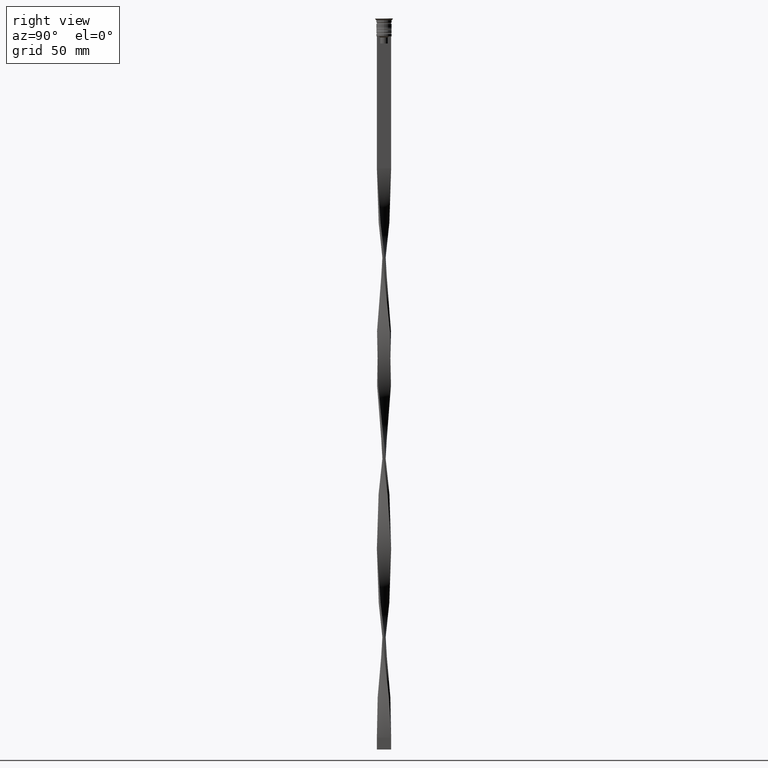
[diagram: clean part render]
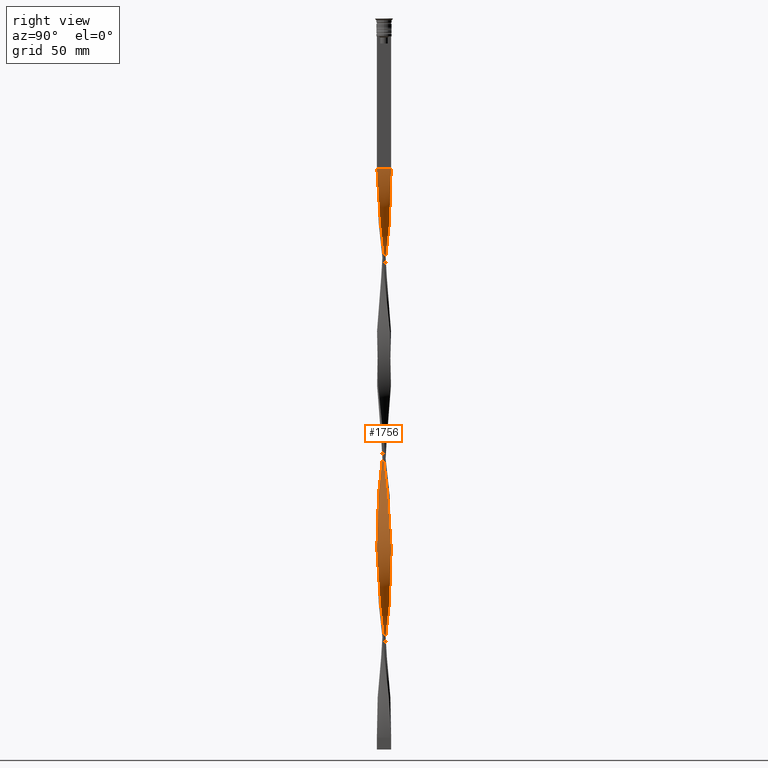
[diagram: same view with one face highlighted and labeled with its STEP entity id]
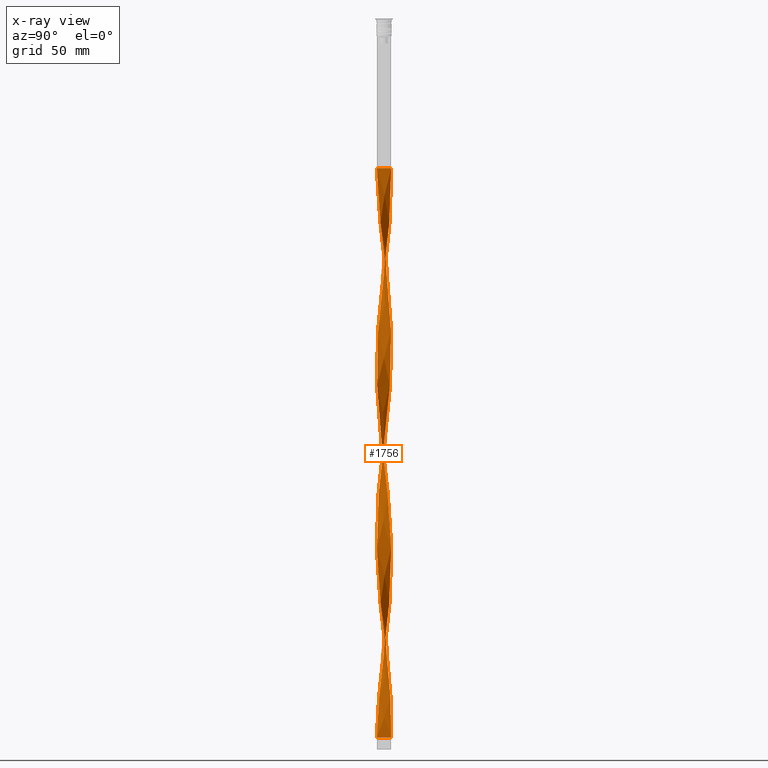
[diagram: x-ray of the same camera — body ghosted, the highlighted face saturated]
A machine part, right view. The second image highlights one B-rep face of the part: STEP entity #1756.
The next image is the same camera in x-ray: the body ghosted, the highlighted face saturated — about 0% of this face is hidden behind the body in this view.
In plain terms, the highlighted face is a freeform B-spline surface patch.
Its self-contained STEP definition (entity closure, byte-faithful):
#5 = CARTESIAN_POINT ( 'NONE',  ( 2.809046431942904931, 1.190190010362667472, -108.9041666666666828 ) ) ;
#7 = CARTESIAN_POINT ( 'NONE',  ( 0.9164682371244567971, 2.900014822434876738, -290.5249999999999204 ) ) ;
#23 = CARTESIAN_POINT ( 'NONE',  ( -1.807474761312824363, -2.446024322695329989, -290.5249999999999204 ) ) ;
#43 = CARTESIAN_POINT ( 'NONE',  ( 1.767766952966369320, 2.474873734152916338, -122.8749999999999858 ) ) ;
#47 = CARTESIAN_POINT ( 'NONE',  ( 0.9631475654182614088, -2.884847789265297724, -226.6583333333333030 ) ) ;
#64 = CARTESIAN_POINT ( 'NONE',  ( -0.9631475654182609647, 2.884847789265297724, -146.8249999999999886 ) ) ;
#67 = CARTESIAN_POINT ( 'NONE',  ( 2.884847789265297724, 0.9631475654182612978, -266.5749999999999318 ) ) ;
#73 = B_SPLINE_CURVE_WITH_KNOTS ( 'NONE', 3,
 ( #3613, #3072, #3670, #1000 ),
 .UNSPECIFIED., .F., .F.,
 ( 4, 4 ),
 ( 0.000000000000000000, 1.000000000000000000 ),
 .UNSPECIFIED. ) ;
#76 = CARTESIAN_POINT ( 'NONE',  ( 1.402579241272418953, -2.698661051697986757, -70.98333333333333428 ) ) ;
#83 = CARTESIAN_POINT ( 'NONE',  ( -1.807474761312823919, 2.446024322695330877, -154.8083333333333371 ) ) ;
#91 = CARTESIAN_POINT ( 'NONE',  ( -0.5000000000000002220, -3.000000000000000000, -302.5000000000000000 ) ) ;
#98 = CARTESIAN_POINT ( 'NONE',  ( -2.827887207922633372, 1.144704353466773128, -168.7791666666666401 ) ) ;
#114 = CARTESIAN_POINT ( 'NONE',  ( 2.167864254064892915, -2.133158356978606118, -78.96666666666665435 ) ) ;
#120 = CARTESIAN_POINT ( 'NONE',  ( 1.807474761312824141, -2.446024322695330433, -234.6416666666666515 ) ) ;
#135 = CARTESIAN_POINT ( 'NONE',  ( -3.007678046072934652, -0.4515227249772653106, -110.9000000000000057 ) ) ;
#153 = CARTESIAN_POINT ( 'NONE',  ( 2.720943609271079033, -1.358847259689946130, -246.6166666666666174 ) ) ;
#158 = CARTESIAN_POINT ( 'NONE',  ( -0.2148133291723922367, 3.043213655198747869, -228.6541666666666686 ) ) ;
#181 = CARTESIAN_POINT ( 'NONE',  ( -2.474873734152916782, -1.767766952966368654, -122.8749999999999858 ) ) ;
#189 = CARTESIAN_POINT ( 'NONE',  ( -0.2148133291723922644, 3.043213655198747869, -68.98749999999999716 ) ) ;
#193 = CARTESIAN_POINT ( 'NONE',  ( 0.9164682371244567971, 2.900014822434876738, -290.5249999999999204 ) ) ;
#197 = CARTESIAN_POINT ( 'NONE',  ( -1.614968472182171100, -2.588275671453069027, -132.8541666666666572 ) ) ;
#209 = CARTESIAN_POINT ( 'NONE',  ( -2.960649146587690961, 0.7361051204738554565, -100.9208333333333343 ) ) ;
#212 = CARTESIAN_POINT ( 'NONE',  ( 2.133158356978606118, 2.167864254064892471, -278.5499999999999545 ) ) ;
#216 = CARTESIAN_POINT ( 'NONE',  ( -0.2638948795261449320, -3.039350853412309039, -144.8291666666666515 ) ) ;
#219 = CARTESIAN_POINT ( 'NONE',  ( -2.167864254064892471, 2.133158356978606118, -158.7999999999999829 ) ) ;
#230 = CARTESIAN_POINT ( 'NONE',  ( 2.972142436947120991, 0.6882321207821398001, -192.7291666666666572 ) ) ;
#241 = CARTESIAN_POINT ( 'NONE',  ( 2.809046431942904931, -1.190190010362666806, -176.7624999999999886 ) ) ;
#244 = CARTESIAN_POINT ( 'NONE',  ( -2.588275671453068583, -1.614968472182171322, -192.7291666666666572 ) ) ;
#251 = CARTESIAN_POINT ( 'NONE',  ( -0.6882321207821390230, 2.972142436947121436, -232.6458333333333428 ) ) ;
#260 = CARTESIAN_POINT ( 'NONE',  ( -2.303772973937591395, 1.999981050443478514, -248.6124999999999829 ) ) ;
#262 = CARTESIAN_POINT ( 'NONE',  ( -3.000000000000000000, -0.4999999999999993339, -182.7499999999999716 ) ) ;
#268 = CARTESIAN_POINT ( 'NONE',  ( -1.144704353466774016, 2.827887207922633372, -236.6374999999999886 ) ) ;
#278 = CARTESIAN_POINT ( 'NONE',  ( 0.4999999999999998890, -3.000000000000000000, -63.00000000000000000 ) ) ;
#281 = CARTESIAN_POINT ( 'NONE',  ( -2.335747457686308426, 1.962543740019620842, -160.7958333333332916 ) ) ;
#287 = CARTESIAN_POINT ( 'NONE',  ( -0.9631475654182616308, -2.884847789265297280, -138.8416666666666401 ) ) ;
#299 = CARTESIAN_POINT ( 'NONE',  ( 1.614968472182170878, -2.588275671453069027, -72.97916666666665719 ) ) ;
#301 = CARTESIAN_POINT ( 'NONE',  ( 0.2148133291723926808, 3.043213655198747869, -136.8458333333333314 ) ) ;
#308 = CARTESIAN_POINT ( 'NONE',  ( 2.588275671453068139, -1.614968472182171988, -172.7708333333333144 ) ) ;
#317 = CARTESIAN_POINT ( 'NONE',  ( -1.572990165913118021, 2.614000010619525138, -240.6291666666666913 ) ) ;
#319 = CARTESIAN_POINT ( 'NONE',  ( 0.4515227249772658102, 3.007678046072934208, -294.5166666666666515 ) ) ;
#337 = CARTESIAN_POINT ( 'NONE',  ( -2.884847789265297724, -0.9631475654182608537, -186.7416666666666458 ) ) ;
#339 = CARTESIAN_POINT ( 'NONE',  ( 1.807474761312824141, -2.446024322695330433, -234.6416666666666515 ) ) ;
#346 = CARTESIAN_POINT ( 'NONE',  ( -2.972142436947120991, -0.6882321207821388009, -272.5624999999999432 ) ) ;
#356 = CARTESIAN_POINT ( 'NONE',  ( -1.358847259689946130, 2.720943609271079033, -78.96666666666665435 ) ) ;
#360 = CARTESIAN_POINT ( 'NONE',  ( -0.2148133291723915983, -3.043213655198747869, -216.6791666666666742 ) ) ;
#364 = CARTESIAN_POINT ( 'NONE',  ( 0.7361051204738552345, -2.960649146587690961, -224.6624999999999943 ) ) ;
#380 = CARTESIAN_POINT ( 'NONE',  ( -1.999981050443478070, 2.303772973937592283, -156.8041666666666458 ) ) ;
#382 = CARTESIAN_POINT ( 'NONE',  ( 2.972142436947121436, -0.6882321207821390230, -252.6041666666666288 ) ) ;
#395 = CARTESIAN_POINT ( 'NONE',  ( -1.402579241272418731, 2.698661051697987201, -150.8166666666666629 ) ) ;
#412 = CARTESIAN_POINT ( 'NONE',  ( 0.4999999999999998890, -3.000000000000000000, -222.6666666666666288 ) ) ;
#431 = CARTESIAN_POINT ( 'NONE',  ( -2.133158356978606118, 2.167864254064892915, -86.95000000000000284 ) ) ;
#434 = CARTESIAN_POINT ( 'NONE',  ( 2.446024322695330433, 1.807474761312824141, -274.5583333333332803 ) ) ;
#445 = CARTESIAN_POINT ( 'NONE',  ( -1.767766952966369098, 2.474873734152916782, -82.95833333333332860 ) ) ;
#447 = CARTESIAN_POINT ( 'NONE',  ( -1.614968472182171100, -2.588275671453069027, -132.8541666666666572 ) ) ;
#451 = CARTESIAN_POINT ( 'NONE',  ( 2.960649146587690517, 0.7361051204738550124, -264.5791666666666515 ) ) ;
#455 = CARTESIAN_POINT ( 'NONE',  ( 2.167864254064893803, 2.133158356978605674, -206.6999999999999602 ) ) ;
#467 = CARTESIAN_POINT ( 'NONE',  ( 3.039350853412309039, 0.2638948795261443769, -260.5874999999999773 ) ) ;
#471 = CARTESIAN_POINT ( 'NONE',  ( 3.041282254305528454, -0.02454077517687676749, -186.7416666666666458 ) ) ;
#488 = CARTESIAN_POINT ( 'NONE',  ( 0.6882321207821392450, 2.972142436947121436, -292.5208333333333712 ) ) ;
#493 = CARTESIAN_POINT ( 'NONE',  ( 1.999981050443478070, 2.303772973937592283, -208.6958333333333258 ) ) ;
#509 = CARTESIAN_POINT ( 'NONE',  ( 2.303772973937592283, -1.999981050443477626, -168.7791666666666401 ) ) ;
#512 = CARTESIAN_POINT ( 'NONE',  ( -0.02454077517687573706, 3.041282254305528010, -138.8416666666666401 ) ) ;
#519 = CARTESIAN_POINT ( 'NONE',  ( 1.614968472182172210, 2.588275671453068139, -212.6875000000000000 ) ) ;
#526 = CARTESIAN_POINT ( 'NONE',  ( 1.962543740019620175, -2.335747457686309758, -164.7874999999999659 ) ) ;
#529 = CARTESIAN_POINT ( 'NONE',  ( 2.972142436947121436, -0.6882321207821390230, -92.93750000000000000 ) ) ;
#539 = CARTESIAN_POINT ( 'NONE',  ( -0.2148133291723922644, 3.043213655198747869, -228.6541666666666686 ) ) ;
#550 = CARTESIAN_POINT ( 'NONE',  ( -1.144704353466773794, 2.827887207922633372, -236.6374999999999886 ) ) ;
#552 = CARTESIAN_POINT ( 'NONE',  ( -2.900014822434876738, 0.9164682371244570191, -170.7749999999999773 ) ) ;
#557 =( BOUNDED_SURFACE ( )  B_SPLINE_SURFACE ( 1, 2, ( 
 ( #3302, #627, #1822, #3617, #946, #646, #1843, #3033, #356, #2222, #445, #1031, #3124, #1633, #2827, #3413, #740, #1936, #1323, #2519, #3702, #2555, #3481, #3769, #1685, #1079, #1099, #1389, #2272, #807, #181, #2239, #1373, #2916, #3440, #197, #2860, #3201, #3736, #3790, #1945, #216, #1665, #2254, #2001, #2586, #2293, #3458, #2570, #3185, #2877, #526, #783, #509, #1701, #3147, #3133, #241, #3424, #3751, #3712, #749, #471, #1063, #2894, #1407, #2314, #2606, #1982, #3169, #1963, #765, #455, #493, #2019, #1121, #3498, #825, #1720, #1045, #2530, #1643, #2837, #158, #1353, #629, #3262, #550, #1762, #317, #2954, #2333, #3848, #260, #2662, #1137, #2703, #2643, #1433, #2078, #1806, #3304, #3245, #3599, #1745, #588, #1196, #3517, #3015, #2937, #1508, #2625, #2996, #904, #23, #1780, #2119, #842, #1214, #3576, #1824 ),
 ( #278, #3557, #2060, #3809, #2974, #299, #1178, #2411, #3827, #2037, #2096, #3225, #3282, #1451, #1156, #929, #1490, #611, #2352, #3539, #869, #2391, #2683, #5, #2374, #569, #1468, #886, #1294, #1870, #43, #3061, #720, #1258, #1887, #670, #1020, #1552, #1604, #3620, #1904, #3343, #64, #2493, #395, #1583, #83, #380, #3076, #3364, #2211, #2470, #2780, #98, #966, #948, #1924, #1241, #1567, #1527, #2436, #2155, #337, #2723, #2137, #3674, #3324, #985, #705, #3398, #2765, #2509, #649, #2179, #1004, #1845, #3035, #360, #3091, #2749, #412, #2196, #2799, #690, #2453, #3637, #120, #3380, #1274, #3653, #1312, #3692, #153, #1959, #1368, #3731, #819, #2268, #3454, #467, #2890, #451, #3493, #1385, #3112, #1095, #434, #1639, #212, #779, #2582, #3180, #1623, #3129, #193, #488, #1975, #1655, #1680, #3164, #2853 ) ),
 .UNSPECIFIED., .F., .F., .T. ) 
 B_SPLINE_SURFACE_WITH_KNOTS ( ( 2, 2 ),
 ( 3, 2, 2, 2, 2, 2, 2, 2, 2, 2, 2, 2, 2, 2, 2, 2, 2, 2, 2, 2, 2, 2, 2, 2, 2, 2, 2, 2, 2, 2, 2, 2, 2, 2, 2, 2, 2, 2, 2, 2, 2, 2, 2, 2, 2, 2, 2, 2, 2, 2, 2, 2, 2, 2, 2, 2, 2, 2, 2, 2, 3 ),
 ( 0.000000000000000000, 1.000000000000000000 ),
 ( 0.000000000000000000, 0.01250000000000000069, 0.02500000000000000139, 0.03749999999999999861, 0.05000000000000000278, 0.06250000000000000000, 0.07499999999999999722, 0.08749999999999999445, 0.1000000000000000056, 0.1125000000000000028, 0.1250000000000000000, 0.1375000000000000111, 0.1499999999999999944, 0.1625000000000000056, 0.1749999999999999889, 0.1875000000000000000, 0.2000000000000000111, 0.2124999999999999944, 0.2250000000000000056, 0.2374999999999999889, 0.2500000000000000000, 0.2625000000000000111, 0.2750000000000000222, 0.2874999999999999778, 0.2999999999999999889, 0.3125000000000000000, 0.3250000000000000111, 0.3375000000000000222, 0.3499999999999999778, 0.3624999999999999889, 0.3750000000000000000, 0.3875000000000000111, 0.4000000000000000222, 0.4124999999999999778, 0.4249999999999999889, 0.4375000000000000000, 0.4500000000000000111, 0.4625000000000000222, 0.4749999999999999778, 0.4874999999999999889, 0.5000000000000000000, 0.5124999999999999556, 0.5250000000000000222, 0.5374999999999999778, 0.5500000000000000444, 0.5625000000000000000, 0.5749999999999999556, 0.5875000000000000222, 0.5999999999999999778, 0.6125000000000000444, 0.6250000000000000000, 0.6374999999999999556, 0.6500000000000000222, 0.6624999999999999778, 0.6750000000000000444, 0.6875000000000000000, 0.6999999999999999556, 0.7125000000000000222, 0.7249999999999999778, 0.7375000000000000444, 0.7500000000000000000 ),
 .UNSPECIFIED. ) 
 GEOMETRIC_REPRESENTATION_ITEM ( )  RATIONAL_B_SPLINE_SURFACE ( (
 ( 1.000000000000000000, 0.9969173337331279638, 1.000000000000000000, 0.9969173337331279638, 1.000000000000000000, 0.9969173337331279638, 1.000000000000000000, 0.9969173337331279638, 1.000000000000000000, 0.9969173337331279638, 1.000000000000000000, 0.9969173337331279638, 1.000000000000000000, 0.9969173337331279638, 1.000000000000000000, 0.9969173337331279638, 1.000000000000000000, 0.9969173337331279638, 1.000000000000000000, 0.9969173337331279638, 1.000000000000000000, 0.9969173337331279638, 1.000000000000000000, 0.9969173337331279638, 1.000000000000000000, 0.9969173337331279638, 1.000000000000000000, 0.9969173337331279638, 1.000000000000000000, 0.9969173337331279638, 1.000000000000000000, 0.9969173337331279638, 1.000000000000000000, 0.9969173337331279638, 1.000000000000000000, 0.9969173337331279638, 1.000000000000000000, 0.9969173337331279638, 1.000000000000000000, 0.9969173337331279638, 1.000000000000000000, 0.9969173337331279638, 1.000000000000000000, 0.9969173337331279638, 1.000000000000000000, 0.9969173337331279638, 1.000000000000000000, 0.9969173337331279638, 1.000000000000000000, 0.9969173337331279638, 1.000000000000000000, 0.9969173337331279638, 1.000000000000000000, 0.9969173337331279638, 1.000000000000000000, 0.9969173337331279638, 1.000000000000000000, 0.9969173337331279638, 1.000000000000000000, 0.9969173337331279638, 1.000000000000000000, 0.9969173337331279638, 1.000000000000000000, 0.9969173337331279638, 1.000000000000000000, 0.9969173337331279638, 1.000000000000000000, 0.9969173337331279638, 1.000000000000000000, 0.9969173337331279638, 1.000000000000000000, 0.9969173337331279638, 1.000000000000000000, 0.9969173337331279638, 1.000000000000000000, 0.9969173337331279638, 1.000000000000000000, 0.9969173337331279638, 1.000000000000000000, 0.9969173337331279638, 1.000000000000000000, 0.9969173337331279638, 1.000000000000000000, 0.9969173337331279638, 1.000000000000000000, 0.9969173337331279638, 1.000000000000000000, 0.9969173337331279638, 1.000000000000000000, 0.9969173337331279638, 1.000000000000000000, 0.9969173337331279638, 1.000000000000000000, 0.9969173337331279638, 1.000000000000000000, 0.9969173337331279638, 1.000000000000000000, 0.9969173337331279638, 1.000000000000000000, 0.9969173337331279638, 1.000000000000000000, 0.9969173337331279638, 1.000000000000000000, 0.9969173337331279638, 1.000000000000000000, 0.9969173337331279638, 1.000000000000000000, 0.9969173337331279638, 1.000000000000000000, 0.9969173337331279638, 1.000000000000000000, 0.9969173337331279638, 1.000000000000000000, 0.9969173337331279638, 1.000000000000000000, 0.9969173337331279638, 1.000000000000000000, 0.9969173337331279638, 1.000000000000000000, 0.9969173337331279638, 1.000000000000000000),
 ( 1.000000000000000000, 0.9969173337331279638, 1.000000000000000000, 0.9969173337331279638, 1.000000000000000000, 0.9969173337331279638, 1.000000000000000000, 0.9969173337331279638, 1.000000000000000000, 0.9969173337331279638, 1.000000000000000000, 0.9969173337331279638, 1.000000000000000000, 0.9969173337331279638, 1.000000000000000000, 0.9969173337331279638, 1.000000000000000000, 0.9969173337331279638, 1.000000000000000000, 0.9969173337331279638, 1.000000000000000000, 0.9969173337331279638, 1.000000000000000000, 0.9969173337331279638, 1.000000000000000000, 0.9969173337331279638, 1.000000000000000000, 0.9969173337331279638, 1.000000000000000000, 0.9969173337331279638, 1.000000000000000000, 0.9969173337331279638, 1.000000000000000000, 0.9969173337331279638, 1.000000000000000000, 0.9969173337331279638, 1.000000000000000000, 0.9969173337331279638, 1.000000000000000000, 0.9969173337331279638, 1.000000000000000000, 0.9969173337331279638, 1.000000000000000000, 0.9969173337331279638, 1.000000000000000000, 0.9969173337331279638, 1.000000000000000000, 0.9969173337331279638, 1.000000000000000000, 0.9969173337331279638, 1.000000000000000000, 0.9969173337331279638, 1.000000000000000000, 0.9969173337331279638, 1.000000000000000000, 0.9969173337331279638, 1.000000000000000000, 0.9969173337331279638, 1.000000000000000000, 0.9969173337331279638, 1.000000000000000000, 0.9969173337331279638, 1.000000000000000000, 0.9969173337331279638, 1.000000000000000000, 0.9969173337331279638, 1.000000000000000000, 0.9969173337331279638, 1.000000000000000000, 0.9969173337331279638, 1.000000000000000000, 0.9969173337331279638, 1.000000000000000000, 0.9969173337331279638, 1.000000000000000000, 0.9969173337331279638, 1.000000000000000000, 0.9969173337331279638, 1.000000000000000000, 0.9969173337331279638, 1.000000000000000000, 0.9969173337331279638, 1.000000000000000000, 0.9969173337331279638, 1.000000000000000000, 0.9969173337331279638, 1.000000000000000000, 0.9969173337331279638, 1.000000000000000000, 0.9969173337331279638, 1.000000000000000000, 0.9969173337331279638, 1.000000000000000000, 0.9969173337331279638, 1.000000000000000000, 0.9969173337331279638, 1.000000000000000000, 0.9969173337331279638, 1.000000000000000000, 0.9969173337331279638, 1.000000000000000000, 0.9969173337331279638, 1.000000000000000000, 0.9969173337331279638, 1.000000000000000000, 0.9969173337331279638, 1.000000000000000000, 0.9969173337331279638, 1.000000000000000000, 0.9969173337331279638, 1.000000000000000000, 0.9969173337331279638, 1.000000000000000000, 0.9969173337331279638, 1.000000000000000000, 0.9969173337331279638, 1.000000000000000000, 0.9969173337331279638, 1.000000000000000000, 0.9969173337331279638, 1.000000000000000000) ) ) 
 REPRESENTATION_ITEM ( '' )  SURFACE ( )  );
#560 = CARTESIAN_POINT ( 'NONE',  ( -2.588275671453069027, 1.614968472182170878, -252.6041666666666288 ) ) ;
#569 = CARTESIAN_POINT ( 'NONE',  ( 2.588275671453069471, 1.614968472182170656, -112.8958333333333570 ) ) ;
#571 = CARTESIAN_POINT ( 'NONE',  ( -2.960649146587690961, -0.7361051204738561227, -184.7458333333333371 ) ) ;
#577 = CARTESIAN_POINT ( 'NONE',  ( 1.767766952966368654, -2.474873734152917226, -162.7916666666666572 ) ) ;
#588 = CARTESIAN_POINT ( 'NONE',  ( -2.972142436947120991, -0.6882321207821388009, -272.5624999999998863 ) ) ;
#590 = CARTESIAN_POINT ( 'NONE',  ( 2.900014822434876738, -0.9164682371244565751, -90.94166666666667709 ) ) ;
#596 = CARTESIAN_POINT ( 'NONE',  ( 3.007678046072934652, 0.4515227249772650331, -190.7333333333333201 ) ) ;
#611 = CARTESIAN_POINT ( 'NONE',  ( 3.043213655198747869, -0.2148133291723924587, -96.92916666666667425 ) ) ;
#627 = CARTESIAN_POINT ( 'NONE',  ( 0.2638948795261445435, 3.039350853412309039, -64.99583333333333712 ) ) ;
#629 = CARTESIAN_POINT ( 'NONE',  ( -0.6882321207821390230, 2.972142436947121436, -232.6458333333333428 ) ) ;
#631 = CARTESIAN_POINT ( 'NONE',  ( 3.007678046072934208, -0.4515227249772656992, -254.5999999999999375 ) ) ;
#632 = EDGE_CURVE ( 'NONE', #1620, #3483, #1236, .T. ) ;
#646 = CARTESIAN_POINT ( 'NONE',  ( -0.6882321207821390230, 2.972142436947121436, -72.97916666666665719 ) ) ;
#649 = CARTESIAN_POINT ( 'NONE',  ( -1.358847259689946574, -2.720943609271078589, -206.6999999999999602 ) ) ;
#651 = DIRECTION ( 'NONE',  ( 0.000000000000000000, 1.000000000000000000, 0.000000000000000000 ) ) ;
#658 = CARTESIAN_POINT ( 'NONE',  ( -3.041282254305528454, 0.02454077517687633381, -266.5749999999999318 ) ) ;
#670 = CARTESIAN_POINT ( 'NONE',  ( 0.6882321207821392450, 2.972142436947121436, -132.8541666666666572 ) ) ;
#690 = CARTESIAN_POINT ( 'NONE',  ( 1.190190010362667694, -2.809046431942904931, -228.6541666666666686 ) ) ;
#692 = CARTESIAN_POINT ( 'NONE',  ( 2.446024322695330433, 1.807474761312824141, -274.5583333333332803 ) ) ;
#699 = CARTESIAN_POINT ( 'NONE',  ( 1.190190010362667472, -2.809046431942904931, -68.98749999999999716 ) ) ;
#705 = CARTESIAN_POINT ( 'NONE',  ( -2.133158356978606562, -2.167864254064892027, -198.7166666666666401 ) ) ;
#720 = CARTESIAN_POINT ( 'NONE',  ( 1.358847259689946352, 2.720943609271078589, -126.8666666666666600 ) ) ;
#727 = EDGE_CURVE ( 'NONE', #1620, #3533, #950, .T. ) ;
#740 = CARTESIAN_POINT ( 'NONE',  ( -2.698661051697986757, 1.402579241272419175, -94.93333333333332291 ) ) ;
#749 = CARTESIAN_POINT ( 'NONE',  ( 3.039350853412309039, -0.2638948795261437108, -184.7458333333333371 ) ) ;
#765 = CARTESIAN_POINT ( 'NONE',  ( 2.335747457686309758, 1.962543740019619731, -204.7041666666666799 ) ) ;
#776 = CARTESIAN_POINT ( 'NONE',  ( -3.000000000000000000, 0.5000000000000001110, -102.9166666666666572 ) ) ;
#779 = CARTESIAN_POINT ( 'NONE',  ( 1.962543740019620175, 2.335747457686308426, -280.5458333333333485 ) ) ;
#783 = CARTESIAN_POINT ( 'NONE',  ( 2.133158356978605674, -2.167864254064893359, -166.7833333333333030 ) ) ;
#798 = CARTESIAN_POINT ( 'NONE',  ( -1.807474761312824363, -2.446024322695329989, -130.8583333333333201 ) ) ;
#807 = CARTESIAN_POINT ( 'NONE',  ( -2.614000010619525138, -1.572990165913117577, -120.8791666666666629 ) ) ;
#810 = CARTESIAN_POINT ( 'NONE',  ( -2.827887207922633372, 1.144704353466773350, -168.7791666666666401 ) ) ;
#816 = CARTESIAN_POINT ( 'NONE',  ( 2.446024322695329989, -1.807474761312824807, -170.7749999999999773 ) ) ;
#819 = CARTESIAN_POINT ( 'NONE',  ( 3.007678046072934208, -0.4515227249772656992, -254.5999999999999375 ) ) ;
#822 = CARTESIAN_POINT ( 'NONE',  ( -0.4999999999999995559, 3.000000000000000000, -302.5000000000000000 ) ) ;
#825 = CARTESIAN_POINT ( 'NONE',  ( 1.190190010362667028, 2.809046431942904931, -216.6791666666666742 ) ) ;
#828 = CARTESIAN_POINT ( 'NONE',  ( -2.972142436947120547, 0.6882321207821407993, -172.7708333333333144 ) ) ;
#833 =( BOUNDED_CURVE ( )  B_SPLINE_CURVE ( 2, ( #2539, #2868, #1993, #189, #3107, #2886, #3125, #3177, #3158, #1676, #3141, #2207, #431, #1364, #3744, #3451, #1382, #3725, #3432, #209, #776, #1399, #1635, #3687, #135, #1971, #2579, #2812, #1015, #3703, #3761, #1032, #1091, #3469, #798, #447, #3270, #2011, #287, #878, #1794, #3253, #3549, #2634, #3508, #2987, #3800, #2963, #1480, #3490, #577, #2383, #3237, #2366, #816, #308, #2904, #2675, #2597, #3858, #2069, #1771, #1188, #3566, #596, #230, #894, #1113, #2086, #3780, #3818, #835, #2304, #1130, #3194, #519, #1712, #1424, #2616, #1737, #2323, #2030, #3212, #539, #2928, #251, #1442, #268, #1147, #2342, #3527, #858, #2052, #3835, #1753, #560, #1168, #1459, #2945, #2653, #3026, #939, #658, #2187, #1517, #346, #1560, #3585, #2128, #3667, #3356, #996, #913, #2774, #2147, #1536, #3314, #1205, #3049, #2693, #2481 ),
 .UNSPECIFIED., .F., .F. ) 
 B_SPLINE_CURVE_WITH_KNOTS ( ( 3, 2, 2, 2, 2, 2, 2, 2, 2, 2, 2, 2, 2, 2, 2, 2, 2, 2, 2, 2, 2, 2, 2, 2, 2, 2, 2, 2, 2, 2, 2, 2, 2, 2, 2, 2, 2, 2, 2, 2, 2, 2, 2, 2, 2, 2, 2, 2, 2, 2, 2, 2, 2, 2, 2, 2, 2, 2, 2, 2, 3 ),
 ( 0.000000000000000000, 0.01250000000000000243, 0.02500000000000000486, 0.03749999999999999861, 0.05000000000000000971, 0.06250000000000000000, 0.07499999999999999722, 0.08749999999999998057, 0.1000000000000000194, 0.1125000000000000028, 0.1250000000000000000, 0.1375000000000000111, 0.1499999999999999944, 0.1625000000000000056, 0.1749999999999999611, 0.1875000000000000000, 0.2000000000000000389, 0.2124999999999999944, 0.2250000000000000056, 0.2374999999999999611, 0.2500000000000000000, 0.2625000000000000111, 0.2750000000000000222, 0.2874999999999999778, 0.2999999999999999889, 0.3125000000000000000, 0.3250000000000000111, 0.3375000000000000777, 0.3499999999999999223, 0.3624999999999999889, 0.3750000000000000000, 0.3875000000000000111, 0.4000000000000000777, 0.4124999999999999223, 0.4249999999999999889, 0.4375000000000000000, 0.4500000000000000111, 0.4625000000000000777, 0.4749999999999999223, 0.4874999999999999889, 0.5000000000000000000, 0.5124999999999999556, 0.5250000000000000222, 0.5374999999999999778, 0.5500000000000000444, 0.5625000000000000000, 0.5749999999999999556, 0.5875000000000000222, 0.5999999999999999778, 0.6125000000000000444, 0.6250000000000000000, 0.6374999999999999556, 0.6500000000000000222, 0.6624999999999999778, 0.6750000000000001554, 0.6875000000000000000, 0.6999999999999998446, 0.7125000000000000222, 0.7249999999999999778, 0.7375000000000001554, 0.7500000000000000000 ),
 .UNSPECIFIED. ) 
 CURVE ( )  GEOMETRIC_REPRESENTATION_ITEM ( )  RATIONAL_B_SPLINE_CURVE ( ( 1.000000000000000000, 0.9969173337331279638, 1.000000000000000000, 0.9969173337331279638, 1.000000000000000000, 0.9969173337331279638, 1.000000000000000000, 0.9969173337331279638, 1.000000000000000000, 0.9969173337331279638, 1.000000000000000000, 0.9969173337331279638, 1.000000000000000000, 0.9969173337331279638, 1.000000000000000000, 0.9969173337331279638, 1.000000000000000000, 0.9969173337331279638, 1.000000000000000000, 0.9969173337331279638, 1.000000000000000000, 0.9969173337331279638, 1.000000000000000000, 0.9969173337331279638, 1.000000000000000000, 0.9969173337331279638, 1.000000000000000000, 0.9969173337331279638, 1.000000000000000000, 0.9969173337331279638, 1.000000000000000000, 0.9969173337331279638, 1.000000000000000000, 0.9969173337331279638, 1.000000000000000000, 0.9969173337331279638, 1.000000000000000000, 0.9969173337331279638, 1.000000000000000000, 0.9969173337331279638, 1.000000000000000000, 0.9969173337331279638, 1.000000000000000000, 0.9969173337331279638, 1.000000000000000000, 0.9969173337331279638, 1.000000000000000000, 0.9969173337331279638, 1.000000000000000000, 0.9969173337331279638, 1.000000000000000000, 0.9969173337331279638, 1.000000000000000000, 0.9969173337331279638, 1.000000000000000000, 0.9969173337331279638, 1.000000000000000000, 0.9969173337331279638, 1.000000000000000000, 0.9969173337331279638, 1.000000000000000000, 0.9969173337331279638, 1.000000000000000000, 0.9969173337331279638, 1.000000000000000000, 0.9969173337331279638, 1.000000000000000000, 0.9969173337331279638, 1.000000000000000000, 0.9969173337331279638, 1.000000000000000000, 0.9969173337331279638, 1.000000000000000000, 0.9969173337331279638, 1.000000000000000000, 0.9969173337331279638, 1.000000000000000000, 0.9969173337331279638, 1.000000000000000000, 0.9969173337331279638, 1.000000000000000000, 0.9969173337331279638, 1.000000000000000000, 0.9969173337331279638, 1.000000000000000000, 0.9969173337331279638, 1.000000000000000000, 0.9969173337331279638, 1.000000000000000000, 0.9969173337331279638, 1.000000000000000000, 0.9969173337331279638, 1.000000000000000000, 0.9969173337331279638, 1.000000000000000000, 0.9969173337331279638, 1.000000000000000000, 0.9969173337331279638, 1.000000000000000000, 0.9969173337331279638, 1.000000000000000000, 0.9969173337331279638, 1.000000000000000000, 0.9969173337331279638, 1.000000000000000000, 0.9969173337331279638, 1.000000000000000000, 0.9969173337331279638, 1.000000000000000000, 0.9969173337331279638, 1.000000000000000000, 0.9969173337331279638, 1.000000000000000000, 0.9969173337331279638, 1.000000000000000000, 0.9969173337331279638, 1.000000000000000000, 0.9969173337331279638, 1.000000000000000000, 0.9969173337331279638, 1.000000000000000000 ) ) 
 REPRESENTATION_ITEM ( '' )  );
#835 = CARTESIAN_POINT ( 'NONE',  ( 2.335747457686309758, 1.962543740019619509, -204.7041666666666515 ) ) ;
#842 = CARTESIAN_POINT ( 'NONE',  ( -1.190190010362667916, -2.809046431942904931, -296.5125000000000455 ) ) ;
#845 = CARTESIAN_POINT ( 'NONE',  ( 0.6882321207821392450, 2.972142436947121436, -132.8541666666666572 ) ) ;
#858 = CARTESIAN_POINT ( 'NONE',  ( -1.962543740019620397, 2.335747457686308870, -244.6208333333333087 ) ) ;
#869 = CARTESIAN_POINT ( 'NONE',  ( 3.000000000000000000, 0.4999999999999996669, -102.9166666666666572 ) ) ;
#871 = CARTESIAN_POINT ( 'NONE',  ( -2.474873734152916338, 1.767766952966369765, -162.7916666666666572 ) ) ;
#878 = CARTESIAN_POINT ( 'NONE',  ( -0.7361051204738556786, -2.960649146587690961, -140.8375000000000057 ) ) ;
#886 = CARTESIAN_POINT ( 'NONE',  ( 2.303772973937592283, 1.999981050443478514, -116.8875000000000028 ) ) ;
#888 = CARTESIAN_POINT ( 'NONE',  ( 3.007678046072934208, -0.4515227249772656992, -94.93333333333332291 ) ) ;
#894 = CARTESIAN_POINT ( 'NONE',  ( 2.900014822434877182, 0.9164682371244560199, -194.7249999999999943 ) ) ;
#904 = CARTESIAN_POINT ( 'NONE',  ( -1.999981050443478514, -2.303772973937591395, -288.5291666666666970 ) ) ;
#906 = CARTESIAN_POINT ( 'NONE',  ( 2.900014822434876738, -0.9164682371244565751, -250.6083333333333201 ) ) ;
#913 = CARTESIAN_POINT ( 'NONE',  ( -2.167864254064893359, -2.133158356978605674, -286.5333333333333030 ) ) ;
#929 = CARTESIAN_POINT ( 'NONE',  ( 2.972142436947121436, -0.6882321207821390230, -92.93750000000001421 ) ) ;
#939 = CARTESIAN_POINT ( 'NONE',  ( -3.039350853412309483, 0.2638948795261447100, -264.5791666666666515 ) ) ;
#946 = CARTESIAN_POINT ( 'NONE',  ( -0.4515227249772654772, 3.007678046072934208, -70.98333333333333428 ) ) ;
#948 = CARTESIAN_POINT ( 'NONE',  ( -2.972142436947120547, 0.6882321207821407993, -172.7708333333333144 ) ) ;
#950 = LINE ( 'NONE', #2139, #2910 ) ;
#966 = CARTESIAN_POINT ( 'NONE',  ( -2.900014822434876738, 0.9164682371244570191, -170.7749999999999773 ) ) ;
#985 = CARTESIAN_POINT ( 'NONE',  ( -2.303772973937592727, -1.999981050443477182, -196.7208333333333314 ) ) ;
#990 = CARTESIAN_POINT ( 'NONE',  ( 0.6882321207821392450, 2.972142436947121436, -292.5208333333333144 ) ) ;
#996 = CARTESIAN_POINT ( 'NONE',  ( -2.335747457686308870, -1.962543740019620397, -284.5375000000000796 ) ) ;
#1000 = CARTESIAN_POINT ( 'NONE',  ( -0.4999999999999995559, 3.000000000000000000, -302.5000000000000000 ) ) ;
#1004 = CARTESIAN_POINT ( 'NONE',  ( -0.9164682371244570191, -2.900014822434876738, -210.6916666666666345 ) ) ;
#1015 = CARTESIAN_POINT ( 'NONE',  ( -2.720943609271079033, -1.358847259689945686, -118.8833333333333258 ) ) ;
#1020 = CARTESIAN_POINT ( 'NONE',  ( 0.4515227249772658102, 3.007678046072934208, -134.8499999999999659 ) ) ;
#1031 = CARTESIAN_POINT ( 'NONE',  ( -1.962543740019620175, 2.335747457686308870, -84.95416666666666572 ) ) ;
#1032 = CARTESIAN_POINT ( 'NONE',  ( -2.335747457686308870, -1.962543740019620397, -124.8708333333333371 ) ) ;
#1045 = CARTESIAN_POINT ( 'NONE',  ( 0.7361051204738573439, 2.960649146587690073, -220.6708333333333485 ) ) ;
#1059 = EDGE_LOOP ( 'NONE', ( #2180, #2679, #1716, #3688 ) ) ;
#1063 = CARTESIAN_POINT ( 'NONE',  ( 3.043213655198747869, 0.2148133291723903493, -188.7374999999999545 ) ) ;
#1066 = CARTESIAN_POINT ( 'NONE',  ( 2.614000010619525138, -1.572990165913117799, -84.95416666666666572 ) ) ;
#1079 = CARTESIAN_POINT ( 'NONE',  ( -2.972142436947120991, -0.6882321207821388009, -112.8958333333333570 ) ) ;
#1091 = CARTESIAN_POINT ( 'NONE',  ( -2.167864254064893359, -2.133158356978605674, -126.8666666666666600 ) ) ;
#1095 = CARTESIAN_POINT ( 'NONE',  ( 2.588275671453069471, 1.614968472182170656, -272.5624999999998863 ) ) ;
#1099 = CARTESIAN_POINT ( 'NONE',  ( -2.900014822434877182, -0.9164682371244562420, -114.8916666666666515 ) ) ;
#1104 = CARTESIAN_POINT ( 'NONE',  ( -2.614000010619523806, 1.572990165913119354, -164.7874999999999659 ) ) ;
#1113 = CARTESIAN_POINT ( 'NONE',  ( 2.827887207922633817, 1.144704353466772684, -196.7208333333333030 ) ) ;
#1121 = CARTESIAN_POINT ( 'NONE',  ( 1.614968472182172432, 2.588275671453068139, -212.6875000000000284 ) ) ;
#1124 = CARTESIAN_POINT ( 'NONE',  ( -2.303772973937592283, -1.999981050443477182, -196.7208333333333030 ) ) ;
#1130 = CARTESIAN_POINT ( 'NONE',  ( 1.999981050443478070, 2.303772973937591839, -208.6958333333333258 ) ) ;
#1137 = CARTESIAN_POINT ( 'NONE',  ( -2.588275671453069027, 1.614968472182170878, -252.6041666666666003 ) ) ;
#1141 = CARTESIAN_POINT ( 'NONE',  ( -1.767766952966369765, -2.474873734152915894, -202.7083333333332860 ) ) ;
#1147 = CARTESIAN_POINT ( 'NONE',  ( -1.358847259689946130, 2.720943609271079033, -238.6333333333332973 ) ) ;
#1156 = CARTESIAN_POINT ( 'NONE',  ( 2.900014822434876738, -0.9164682371244565751, -90.94166666666667709 ) ) ;
#1158 = CARTESIAN_POINT ( 'NONE',  ( -0.4515227249772663654, -3.007678046072934208, -214.6833333333333087 ) ) ;
#1168 = CARTESIAN_POINT ( 'NONE',  ( -2.698661051697986757, 1.402579241272419175, -254.5999999999999375 ) ) ;
#1178 = CARTESIAN_POINT ( 'NONE',  ( 1.807474761312824141, -2.446024322695330433, -74.97499999999999432 ) ) ;
#1180 = CARTESIAN_POINT ( 'NONE',  ( 2.446024322695330433, 1.807474761312824141, -114.8916666666666515 ) ) ;
#1188 = CARTESIAN_POINT ( 'NONE',  ( 3.041282254305528454, -0.02454077517687676749, -186.7416666666666458 ) ) ;
#1196 = CARTESIAN_POINT ( 'NONE',  ( -2.900014822434877182, -0.9164682371244562420, -274.5583333333332803 ) ) ;
#1198 = CARTESIAN_POINT ( 'NONE',  ( 1.614968472182170878, -2.588275671453069027, -232.6458333333333428 ) ) ;
#1205 = CARTESIAN_POINT ( 'NONE',  ( -1.190190010362667916, -2.809046431942904931, -296.5124999999999886 ) ) ;
#1214 = CARTESIAN_POINT ( 'NONE',  ( -0.9631475654182616308, -2.884847789265297280, -298.5083333333332689 ) ) ;
#1216 = CARTESIAN_POINT ( 'NONE',  ( 3.043213655198747869, -0.2148133291723924865, -256.5958333333333030 ) ) ;
#1236 =( BOUNDED_CURVE ( )  B_SPLINE_CURVE ( 2, ( #2758, #3373, #1561, #699, #76, #1897, #3086, #1594, #114, #2502, #3684, #1066, #2258, #3443, #590, #529, #888, #2897, #3229, #2356, #3484, #2080, #2317, #1413, #2005, #2062, #1180, #1747, #3264, #3188, #1783, #2921, #2023, #2647, #3542, #845, #2978, #301, #512, #3850, #2589, #3502, #2611, #1704, #3247, #2376, #2939, #3772, #219, #281, #871, #1104, #2298, #810, #552, #828, #1436, #2041, #3204, #3793, #262, #571, #3559, #1725, #2957, #244, #1764, #1124, #1470, #2628, #1141, #3812, #1453, #2336, #3520, #3829, #1158, #2666, #2121, #2181, #3063, #364, #47, #2455, #3017, #1198, #339, #1889, #2413, #3037, #1826, #3366, #2705, #2767, #906, #382, #631, #1216, #3639, #1554, #2751, #2393, #67, #2685, #2472, #1570, #692, #3079, #1529, #1492, #3655, #3622, #1872, #2725, #7, #990, #319, #3327, #3579, #2098, #3287 ),
 .UNSPECIFIED., .F., .F. ) 
 B_SPLINE_CURVE_WITH_KNOTS ( ( 3, 2, 2, 2, 2, 2, 2, 2, 2, 2, 2, 2, 2, 2, 2, 2, 2, 2, 2, 2, 2, 2, 2, 2, 2, 2, 2, 2, 2, 2, 2, 2, 2, 2, 2, 2, 2, 2, 2, 2, 2, 2, 2, 2, 2, 2, 2, 2, 2, 2, 2, 2, 2, 2, 2, 2, 2, 2, 2, 2, 3 ),
 ( 0.000000000000000000, 0.01250000000000000243, 0.02500000000000000486, 0.03749999999999999861, 0.05000000000000000971, 0.06250000000000000000, 0.07499999999999999722, 0.08749999999999998057, 0.1000000000000000194, 0.1125000000000000028, 0.1250000000000000000, 0.1375000000000000111, 0.1499999999999999944, 0.1625000000000000056, 0.1749999999999999611, 0.1875000000000000000, 0.2000000000000000389, 0.2124999999999999944, 0.2250000000000000056, 0.2374999999999999611, 0.2500000000000000000, 0.2625000000000000111, 0.2750000000000000222, 0.2874999999999999778, 0.2999999999999999889, 0.3125000000000000000, 0.3250000000000000111, 0.3375000000000000777, 0.3499999999999999223, 0.3624999999999999889, 0.3750000000000000000, 0.3875000000000000111, 0.4000000000000000777, 0.4124999999999999223, 0.4249999999999999889, 0.4375000000000000000, 0.4500000000000000111, 0.4625000000000000777, 0.4749999999999999223, 0.4874999999999999889, 0.5000000000000000000, 0.5124999999999999556, 0.5250000000000000222, 0.5374999999999999778, 0.5500000000000000444, 0.5625000000000000000, 0.5749999999999999556, 0.5875000000000000222, 0.5999999999999999778, 0.6125000000000000444, 0.6250000000000000000, 0.6374999999999999556, 0.6500000000000000222, 0.6624999999999999778, 0.6750000000000001554, 0.6875000000000000000, 0.6999999999999998446, 0.7125000000000000222, 0.7249999999999999778, 0.7375000000000001554, 0.7500000000000000000 ),
 .UNSPECIFIED. ) 
 CURVE ( )  GEOMETRIC_REPRESENTATION_ITEM ( )  RATIONAL_B_SPLINE_CURVE ( ( 1.000000000000000000, 0.9969173337331279638, 1.000000000000000000, 0.9969173337331279638, 1.000000000000000000, 0.9969173337331279638, 1.000000000000000000, 0.9969173337331279638, 1.000000000000000000, 0.9969173337331279638, 1.000000000000000000, 0.9969173337331279638, 1.000000000000000000, 0.9969173337331279638, 1.000000000000000000, 0.9969173337331279638, 1.000000000000000000, 0.9969173337331279638, 1.000000000000000000, 0.9969173337331279638, 1.000000000000000000, 0.9969173337331279638, 1.000000000000000000, 0.9969173337331279638, 1.000000000000000000, 0.9969173337331279638, 1.000000000000000000, 0.9969173337331279638, 1.000000000000000000, 0.9969173337331279638, 1.000000000000000000, 0.9969173337331279638, 1.000000000000000000, 0.9969173337331279638, 1.000000000000000000, 0.9969173337331279638, 1.000000000000000000, 0.9969173337331279638, 1.000000000000000000, 0.9969173337331279638, 1.000000000000000000, 0.9969173337331279638, 1.000000000000000000, 0.9969173337331279638, 1.000000000000000000, 0.9969173337331279638, 1.000000000000000000, 0.9969173337331279638, 1.000000000000000000, 0.9969173337331279638, 1.000000000000000000, 0.9969173337331279638, 1.000000000000000000, 0.9969173337331279638, 1.000000000000000000, 0.9969173337331279638, 1.000000000000000000, 0.9969173337331279638, 1.000000000000000000, 0.9969173337331279638, 1.000000000000000000, 0.9969173337331279638, 1.000000000000000000, 0.9969173337331279638, 1.000000000000000000, 0.9969173337331279638, 1.000000000000000000, 0.9969173337331279638, 1.000000000000000000, 0.9969173337331279638, 1.000000000000000000, 0.9969173337331279638, 1.000000000000000000, 0.9969173337331279638, 1.000000000000000000, 0.9969173337331279638, 1.000000000000000000, 0.9969173337331279638, 1.000000000000000000, 0.9969173337331279638, 1.000000000000000000, 0.9969173337331279638, 1.000000000000000000, 0.9969173337331279638, 1.000000000000000000, 0.9969173337331279638, 1.000000000000000000, 0.9969173337331279638, 1.000000000000000000, 0.9969173337331279638, 1.000000000000000000, 0.9969173337331279638, 1.000000000000000000, 0.9969173337331279638, 1.000000000000000000, 0.9969173337331279638, 1.000000000000000000, 0.9969173337331279638, 1.000000000000000000, 0.9969173337331279638, 1.000000000000000000, 0.9969173337331279638, 1.000000000000000000, 0.9969173337331279638, 1.000000000000000000, 0.9969173337331279638, 1.000000000000000000, 0.9969173337331279638, 1.000000000000000000, 0.9969173337331279638, 1.000000000000000000, 0.9969173337331279638, 1.000000000000000000, 0.9969173337331279638, 1.000000000000000000, 0.9969173337331279638, 1.000000000000000000, 0.9969173337331279638, 1.000000000000000000, 0.9969173337331279638, 1.000000000000000000 ) ) 
 REPRESENTATION_ITEM ( '' )  );
#1241 = CARTESIAN_POINT ( 'NONE',  ( -3.043213655198747869, 0.2148133291723914873, -176.7624999999999886 ) ) ;
#1258 = CARTESIAN_POINT ( 'NONE',  ( 1.144704353466774238, 2.827887207922633372, -128.8624999999999829 ) ) ;
#1274 = CARTESIAN_POINT ( 'NONE',  ( 2.167864254064892915, -2.133158356978606118, -238.6333333333332973 ) ) ;
#1294 = CARTESIAN_POINT ( 'NONE',  ( 2.133158356978606118, 2.167864254064892471, -118.8833333333333258 ) ) ;
#1312 = CARTESIAN_POINT ( 'NONE',  ( 2.474873734152916782, -1.767766952966369098, -242.6249999999999716 ) ) ;
#1323 = CARTESIAN_POINT ( 'NONE',  ( -2.884847789265297724, 0.9631475654182616308, -98.92499999999998295 ) ) ;
#1353 = CARTESIAN_POINT ( 'NONE',  ( -0.4515227249772654772, 3.007678046072934208, -230.6499999999999773 ) ) ;
#1364 = CARTESIAN_POINT ( 'NONE',  ( -2.303772973937590951, 1.999981050443478514, -88.94583333333332575 ) ) ;
#1368 = CARTESIAN_POINT ( 'NONE',  ( 2.900014822434876738, -0.9164682371244565751, -250.6083333333333201 ) ) ;
#1373 = CARTESIAN_POINT ( 'NONE',  ( -2.167864254064893359, -2.133158356978605674, -126.8666666666666600 ) ) ;
#1382 = CARTESIAN_POINT ( 'NONE',  ( -2.698661051697986757, 1.402579241272419175, -94.93333333333332291 ) ) ;
#1385 = CARTESIAN_POINT ( 'NONE',  ( 2.809046431942904931, 1.190190010362667472, -268.5708333333332689 ) ) ;
#1389 = CARTESIAN_POINT ( 'NONE',  ( -2.827887207922633372, -1.144704353466773794, -116.8875000000000028 ) ) ;
#1393 = CARTESIAN_POINT ( 'NONE',  ( 0.4999999999999998890, -3.000000000000000000, -63.00000000000000000 ) ) ;
#1399 = CARTESIAN_POINT ( 'NONE',  ( -3.039350853412309483, 0.2638948795261447100, -104.9125000000000085 ) ) ;
#1407 = CARTESIAN_POINT ( 'NONE',  ( 2.972142436947120991, 0.6882321207821398001, -192.7291666666666288 ) ) ;
#1413 = CARTESIAN_POINT ( 'NONE',  ( 2.809046431942904931, 1.190190010362667472, -108.9041666666666828 ) ) ;
#1424 = CARTESIAN_POINT ( 'NONE',  ( 1.190190010362667028, 2.809046431942904931, -216.6791666666666742 ) ) ;
#1433 = CARTESIAN_POINT ( 'NONE',  ( -2.884847789265297724, 0.9631475654182616308, -258.5916666666666401 ) ) ;
#1436 = CARTESIAN_POINT ( 'NONE',  ( -3.007678046072934208, 0.4515227249772660323, -174.7666666666666515 ) ) ;
#1442 = CARTESIAN_POINT ( 'NONE',  ( -0.9164682371244562420, 2.900014822434877182, -234.6416666666666515 ) ) ;
#1451 = CARTESIAN_POINT ( 'NONE',  ( 2.827887207922633372, -1.144704353466774238, -88.94583333333332575 ) ) ;
#1453 = CARTESIAN_POINT ( 'NONE',  ( -1.358847259689946574, -2.720943609271078589, -206.6999999999999602 ) ) ;
#1459 = CARTESIAN_POINT ( 'NONE',  ( -2.809046431942904931, 1.190190010362667472, -256.5958333333333030 ) ) ;
#1468 = CARTESIAN_POINT ( 'NONE',  ( 2.446024322695330433, 1.807474761312824141, -114.8916666666666515 ) ) ;
#1470 = CARTESIAN_POINT ( 'NONE',  ( -2.133158356978606562, -2.167864254064892027, -198.7166666666666401 ) ) ;
#1480 = CARTESIAN_POINT ( 'NONE',  ( 1.358847259689945686, -2.720943609271079033, -158.7999999999999829 ) ) ;
#1490 = CARTESIAN_POINT ( 'NONE',  ( 3.007678046072934208, -0.4515227249772656992, -94.93333333333332291 ) ) ;
#1492 = CARTESIAN_POINT ( 'NONE',  ( 1.962543740019620397, 2.335747457686308426, -280.5458333333333485 ) ) ;
#1508 = CARTESIAN_POINT ( 'NONE',  ( -2.474873734152916782, -1.767766952966368654, -282.5416666666666288 ) ) ;
#1517 = CARTESIAN_POINT ( 'NONE',  ( -3.007678046072934652, -0.4515227249772653106, -270.5666666666666060 ) ) ;
#1527 = CARTESIAN_POINT ( 'NONE',  ( -3.039350853412309483, -0.2638948795261427116, -180.7541666666666345 ) ) ;
#1529 = CARTESIAN_POINT ( 'NONE',  ( 2.133158356978606118, 2.167864254064892471, -278.5499999999999545 ) ) ;
#1536 = CARTESIAN_POINT ( 'NONE',  ( -1.614968472182171100, -2.588275671453069027, -292.5208333333333144 ) ) ;
#1552 = CARTESIAN_POINT ( 'NONE',  ( 0.2148133291723926808, 3.043213655198747869, -136.8458333333333314 ) ) ;
#1554 = CARTESIAN_POINT ( 'NONE',  ( 3.039350853412309483, 0.2638948795261443769, -260.5874999999999773 ) ) ;
#1560 = CARTESIAN_POINT ( 'NONE',  ( -2.900014822434877182, -0.9164682371244562420, -274.5583333333332803 ) ) ;
#1561 = CARTESIAN_POINT ( 'NONE',  ( 0.9631475654182614088, -2.884847789265297724, -66.99166666666667425 ) ) ;
#1567 = CARTESIAN_POINT ( 'NONE',  ( -3.041282254305528010, -0.02454077517687557747, -178.7583333333332973 ) ) ;
#1570 = CARTESIAN_POINT ( 'NONE',  ( 2.588275671453069471, 1.614968472182170656, -272.5624999999999432 ) ) ;
#1583 = CARTESIAN_POINT ( 'NONE',  ( -1.614968472182170434, 2.588275671453069915, -152.8125000000000000 ) ) ;
#1594 = CARTESIAN_POINT ( 'NONE',  ( 1.999981050443478514, -2.303772973937591839, -76.97083333333333144 ) ) ;
#1604 = CARTESIAN_POINT ( 'NONE',  ( -0.02454077517687573706, 3.041282254305528010, -138.8416666666666401 ) ) ;
#1620 = VERTEX_POINT ( 'NONE', #1393 ) ;
#1623 = CARTESIAN_POINT ( 'NONE',  ( 1.358847259689946352, 2.720943609271078589, -286.5333333333333030 ) ) ;
#1633 = CARTESIAN_POINT ( 'NONE',  ( -2.303772973937591395, 1.999981050443478514, -88.94583333333332575 ) ) ;
#1635 = CARTESIAN_POINT ( 'NONE',  ( -3.041282254305528454, 0.02454077517687633381, -106.9083333333333314 ) ) ;
#1639 = CARTESIAN_POINT ( 'NONE',  ( 2.303772973937592283, 1.999981050443478514, -276.5541666666666174 ) ) ;
#1643 = CARTESIAN_POINT ( 'NONE',  ( 0.2638948795261445435, 3.039350853412309039, -224.6624999999999943 ) ) ;
#1655 = CARTESIAN_POINT ( 'NONE',  ( 0.2148133291723926808, 3.043213655198747869, -296.5125000000000455 ) ) ;
#1665 = CARTESIAN_POINT ( 'NONE',  ( -0.02454077517687660442, -3.041282254305528454, -146.8249999999999886 ) ) ;
#1676 = CARTESIAN_POINT ( 'NONE',  ( -1.572990165913117799, 2.614000010619525138, -80.96249999999999147 ) ) ;
#1680 = CARTESIAN_POINT ( 'NONE',  ( -0.02454077517687573706, 3.041282254305528010, -298.5083333333332689 ) ) ;
#1685 = CARTESIAN_POINT ( 'NONE',  ( -3.007678046072934652, -0.4515227249772653106, -110.9000000000000057 ) ) ;
#1701 = CARTESIAN_POINT ( 'NONE',  ( 2.446024322695329989, -1.807474761312824807, -170.7749999999999773 ) ) ;
#1704 = CARTESIAN_POINT ( 'NONE',  ( -1.190190010362667250, 2.809046431942904931, -148.8208333333333258 ) ) ;
#1712 = CARTESIAN_POINT ( 'NONE',  ( 1.402579241272419619, 2.698661051697986757, -214.6833333333333087 ) ) ;
#1716 = ORIENTED_EDGE ( 'NONE', *, *, #2237, .F. ) ;
#1720 = CARTESIAN_POINT ( 'NONE',  ( 0.9631475654182620749, 2.884847789265297280, -218.6749999999999829 ) ) ;
#1725 = CARTESIAN_POINT ( 'NONE',  ( -2.809046431942905819, -1.190190010362665918, -188.7374999999999829 ) ) ;
#1737 = CARTESIAN_POINT ( 'NONE',  ( 0.7361051204738573439, 2.960649146587690517, -220.6708333333333485 ) ) ;
#1745 = CARTESIAN_POINT ( 'NONE',  ( -3.007678046072934652, -0.4515227249772653106, -270.5666666666666060 ) ) ;
#1747 = CARTESIAN_POINT ( 'NONE',  ( 2.303772973937591839, 1.999981050443478514, -116.8875000000000028 ) ) ;
#1753 = CARTESIAN_POINT ( 'NONE',  ( -2.446024322695329989, 1.807474761312824363, -250.6083333333333201 ) ) ;
#1756 = ADVANCED_FACE ( 'NONE', ( #2994 ), #557, .T. ) ;
#1762 = CARTESIAN_POINT ( 'NONE',  ( -1.358847259689946130, 2.720943609271079033, -238.6333333333332973 ) ) ;
#1764 = CARTESIAN_POINT ( 'NONE',  ( -2.446024322695331321, -1.807474761312823919, -194.7249999999999943 ) ) ;
#1771 = CARTESIAN_POINT ( 'NONE',  ( 3.039350853412309483, -0.2638948795261437108, -184.7458333333333371 ) ) ;
#1780 = CARTESIAN_POINT ( 'NONE',  ( -1.614968472182171100, -2.588275671453069027, -292.5208333333333712 ) ) ;
#1783 = CARTESIAN_POINT ( 'NONE',  ( 1.767766952966369320, 2.474873734152916338, -122.8749999999999858 ) ) ;
#1794 = CARTESIAN_POINT ( 'NONE',  ( -0.5000000000000002220, -3.000000000000000000, -142.8333333333333144 ) ) ;
#1806 = CARTESIAN_POINT ( 'NONE',  ( -3.000000000000000000, 0.5000000000000001110, -262.5833333333332575 ) ) ;
#1822 = CARTESIAN_POINT ( 'NONE',  ( 0.02454077517687617074, 3.041282254305528454, -66.99166666666667425 ) ) ;
#1824 = CARTESIAN_POINT ( 'NONE',  ( -0.5000000000000002220, -3.000000000000000000, -302.5000000000000000 ) ) ;
#1826 = CARTESIAN_POINT ( 'NONE',  ( 2.474873734152916782, -1.767766952966369098, -242.6249999999999716 ) ) ;
#1843 = CARTESIAN_POINT ( 'NONE',  ( -0.9164682371244562420, 2.900014822434877182, -74.97499999999999432 ) ) ;
#1845 = CARTESIAN_POINT ( 'NONE',  ( -0.6882321207821410214, -2.972142436947120547, -212.6875000000000284 ) ) ;
#1870 = CARTESIAN_POINT ( 'NONE',  ( 1.962543740019620175, 2.335747457686308426, -120.8791666666666629 ) ) ;
#1872 = CARTESIAN_POINT ( 'NONE',  ( 1.358847259689946352, 2.720943609271078589, -286.5333333333333030 ) ) ;
#1887 = CARTESIAN_POINT ( 'NONE',  ( 0.9164682371244567971, 2.900014822434876738, -130.8583333333333201 ) ) ;
#1889 = CARTESIAN_POINT ( 'NONE',  ( 1.999981050443478514, -2.303772973937591839, -236.6374999999999886 ) ) ;
#1897 = CARTESIAN_POINT ( 'NONE',  ( 1.614968472182170878, -2.588275671453069027, -72.97916666666667140 ) ) ;
#1904 = CARTESIAN_POINT ( 'NONE',  ( -0.4999999999999995559, 3.000000000000000000, -142.8333333333333144 ) ) ;
#1924 = CARTESIAN_POINT ( 'NONE',  ( -3.007678046072934208, 0.4515227249772660323, -174.7666666666666515 ) ) ;
#1936 = CARTESIAN_POINT ( 'NONE',  ( -2.809046431942904931, 1.190190010362667694, -96.92916666666667425 ) ) ;
#1945 = CARTESIAN_POINT ( 'NONE',  ( -0.5000000000000002220, -3.000000000000000000, -142.8333333333333144 ) ) ;
#1959 = CARTESIAN_POINT ( 'NONE',  ( 2.827887207922633372, -1.144704353466774238, -248.6124999999999829 ) ) ;
#1963 = CARTESIAN_POINT ( 'NONE',  ( 2.474873734152917226, 1.767766952966368210, -202.7083333333332860 ) ) ;
#1971 = CARTESIAN_POINT ( 'NONE',  ( -2.972142436947120991, -0.6882321207821388009, -112.8958333333333428 ) ) ;
#1975 = CARTESIAN_POINT ( 'NONE',  ( 0.4515227249772658102, 3.007678046072934208, -294.5166666666666515 ) ) ;
#1982 = CARTESIAN_POINT ( 'NONE',  ( 2.720943609271079477, 1.358847259689945020, -198.7166666666666401 ) ) ;
#1993 = CARTESIAN_POINT ( 'NONE',  ( 0.02454077517687617074, 3.041282254305528454, -66.99166666666667425 ) ) ;
#2001 = CARTESIAN_POINT ( 'NONE',  ( 0.4515227249772650886, -3.007678046072934652, -150.8166666666666629 ) ) ;
#2005 = CARTESIAN_POINT ( 'NONE',  ( 2.698661051697987201, 1.402579241272418953, -110.9000000000000057 ) ) ;
#2011 = CARTESIAN_POINT ( 'NONE',  ( -1.190190010362667916, -2.809046431942904931, -136.8458333333333314 ) ) ;
#2019 = CARTESIAN_POINT ( 'NONE',  ( 1.807474761312824807, 2.446024322695329989, -210.6916666666666345 ) ) ;
#2023 = CARTESIAN_POINT ( 'NONE',  ( 1.358847259689946352, 2.720943609271078589, -126.8666666666666600 ) ) ;
#2030 = CARTESIAN_POINT ( 'NONE',  ( 0.2638948795261445435, 3.039350853412309483, -224.6624999999999943 ) ) ;
#2037 = CARTESIAN_POINT ( 'NONE',  ( 2.335747457686308870, -1.962543740019620175, -80.96249999999997726 ) ) ;
#2041 = CARTESIAN_POINT ( 'NONE',  ( -3.043213655198747869, 0.2148133291723914595, -176.7624999999999886 ) ) ;
#2052 = CARTESIAN_POINT ( 'NONE',  ( -2.133158356978606118, 2.167864254064892915, -246.6166666666666174 ) ) ;
#2060 = CARTESIAN_POINT ( 'NONE',  ( 0.9631475654182614088, -2.884847789265297724, -66.99166666666667425 ) ) ;
#2062 = CARTESIAN_POINT ( 'NONE',  ( 2.588275671453069471, 1.614968472182170656, -112.8958333333333428 ) ) ;
#2069 = CARTESIAN_POINT ( 'NONE',  ( 3.000000000000000000, -0.5000000000000004441, -182.7499999999999716 ) ) ;
#2078 = CARTESIAN_POINT ( 'NONE',  ( -2.960649146587690517, 0.7361051204738553455, -260.5874999999999773 ) ) ;
#2080 = CARTESIAN_POINT ( 'NONE',  ( 2.960649146587690961, 0.7361051204738551235, -104.9125000000000085 ) ) ;
#2086 = CARTESIAN_POINT ( 'NONE',  ( 2.720943609271079477, 1.358847259689945020, -198.7166666666666401 ) ) ;
#2096 = CARTESIAN_POINT ( 'NONE',  ( 2.474873734152916782, -1.767766952966369098, -82.95833333333332860 ) ) ;
#2098 = CARTESIAN_POINT ( 'NONE',  ( -0.2638948795261441549, 3.039350853412309483, -300.5041666666666629 ) ) ;
#2119 = CARTESIAN_POINT ( 'NONE',  ( -1.402579241272419397, -2.698661051697986757, -294.5166666666666515 ) ) ;
#2121 = CARTESIAN_POINT ( 'NONE',  ( 0.02454077517687541440, -3.041282254305528010, -218.6749999999999829 ) ) ;
#2128 = CARTESIAN_POINT ( 'NONE',  ( -2.720943609271079033, -1.358847259689945686, -278.5499999999999545 ) ) ;
#2137 = CARTESIAN_POINT ( 'NONE',  ( -2.698661051697987201, -1.402579241272418509, -190.7333333333333201 ) ) ;
#2139 = CARTESIAN_POINT ( 'NONE',  ( 0.4999999999999998890, -3.000000000000000000, -63.00000000000000000 ) ) ;
#2147 = CARTESIAN_POINT ( 'NONE',  ( -1.807474761312824363, -2.446024322695329989, -290.5249999999999204 ) ) ;
#2155 = CARTESIAN_POINT ( 'NONE',  ( -2.960649146587690517, -0.7361051204738560116, -184.7458333333333371 ) ) ;
#2179 = CARTESIAN_POINT ( 'NONE',  ( -1.144704353466773350, -2.827887207922633372, -208.6958333333333258 ) ) ;
#2180 = ORIENTED_EDGE ( 'NONE', *, *, #727, .F. ) ;
#2181 = CARTESIAN_POINT ( 'NONE',  ( 0.2638948795261425451, -3.039350853412309483, -220.6708333333333485 ) ) ;
#2187 = CARTESIAN_POINT ( 'NONE',  ( -3.043213655198747869, -0.2148133291723919869, -268.5708333333333258 ) ) ;
#2196 = CARTESIAN_POINT ( 'NONE',  ( 0.7361051204738551235, -2.960649146587690517, -224.6624999999999943 ) ) ;
#2207 = CARTESIAN_POINT ( 'NONE',  ( -1.962543740019620397, 2.335747457686308870, -84.95416666666666572 ) ) ;
#2211 = CARTESIAN_POINT ( 'NONE',  ( -2.474873734152916338, 1.767766952966369765, -162.7916666666666572 ) ) ;
#2222 = CARTESIAN_POINT ( 'NONE',  ( -1.572990165913118021, 2.614000010619525138, -80.96249999999997726 ) ) ;
#2237 = EDGE_CURVE ( 'NONE', #2514, #3483, #73, .T. ) ;
#2239 = CARTESIAN_POINT ( 'NONE',  ( -2.335747457686308870, -1.962543740019620175, -124.8708333333333371 ) ) ;
#2254 = CARTESIAN_POINT ( 'NONE',  ( 0.2148133291723918481, -3.043213655198747869, -148.8208333333332973 ) ) ;
#2258 = CARTESIAN_POINT ( 'NONE',  ( 2.720943609271079033, -1.358847259689946130, -86.95000000000000284 ) ) ;
#2268 = CARTESIAN_POINT ( 'NONE',  ( 3.043213655198747869, -0.2148133291723924587, -256.5958333333332462 ) ) ;
#2272 = CARTESIAN_POINT ( 'NONE',  ( -2.720943609271079033, -1.358847259689945686, -118.8833333333333258 ) ) ;
#2293 = CARTESIAN_POINT ( 'NONE',  ( 0.9164682371244560199, -2.900014822434876738, -154.8083333333333371 ) ) ;
#2298 = CARTESIAN_POINT ( 'NONE',  ( -2.720943609271078589, 1.358847259689946352, -166.7833333333333030 ) ) ;
#2304 = CARTESIAN_POINT ( 'NONE',  ( 2.167864254064893803, 2.133158356978605674, -206.6999999999999602 ) ) ;
#2314 = CARTESIAN_POINT ( 'NONE',  ( 2.900014822434877182, 0.9164682371244560199, -194.7249999999999943 ) ) ;
#2317 = CARTESIAN_POINT ( 'NONE',  ( 2.884847789265297724, 0.9631475654182612978, -106.9083333333333314 ) ) ;
#2323 = CARTESIAN_POINT ( 'NONE',  ( 0.4999999999999998890, 3.000000000000000000, -222.6666666666666288 ) ) ;
#2330 = CARTESIAN_POINT ( 'NONE',  ( 0.4999999999999998890, 3.000000000000000000, -63.00000000000000000 ) ) ;
#2333 = CARTESIAN_POINT ( 'NONE',  ( -1.962543740019620175, 2.335747457686308870, -244.6208333333333371 ) ) ;
#2336 = CARTESIAN_POINT ( 'NONE',  ( -1.144704353466773572, -2.827887207922633372, -208.6958333333333258 ) ) ;
#2342 = CARTESIAN_POINT ( 'NONE',  ( -1.572990165913117799, 2.614000010619525138, -240.6291666666666629 ) ) ;
#2352 = CARTESIAN_POINT ( 'NONE',  ( 3.041282254305528454, 0.02454077517687600768, -98.92499999999998295 ) ) ;
#2356 = CARTESIAN_POINT ( 'NONE',  ( 3.039350853412309483, 0.2638948795261443769, -100.9208333333333343 ) ) ;
#2366 = CARTESIAN_POINT ( 'NONE',  ( 2.303772973937591839, -1.999981050443477626, -168.7791666666666401 ) ) ;
#2374 = CARTESIAN_POINT ( 'NONE',  ( 2.698661051697987201, 1.402579241272418953, -110.9000000000000057 ) ) ;
#2376 = CARTESIAN_POINT ( 'NONE',  ( -1.614968472182170434, 2.588275671453069915, -152.8125000000000000 ) ) ;
#2383 = CARTESIAN_POINT ( 'NONE',  ( 1.962543740019620397, -2.335747457686309758, -164.7874999999999659 ) ) ;
#2391 = CARTESIAN_POINT ( 'NONE',  ( 2.960649146587690517, 0.7361051204738550124, -104.9125000000000227 ) ) ;
#2393 = CARTESIAN_POINT ( 'NONE',  ( 2.960649146587690961, 0.7361051204738551235, -264.5791666666666515 ) ) ;
#2411 = CARTESIAN_POINT ( 'NONE',  ( 1.999981050443478514, -2.303772973937592283, -76.97083333333333144 ) ) ;
#2413 = CARTESIAN_POINT ( 'NONE',  ( 2.167864254064892915, -2.133158356978606118, -238.6333333333332973 ) ) ;
#2436 = CARTESIAN_POINT ( 'NONE',  ( -3.000000000000000000, -0.4999999999999993339, -182.7499999999999716 ) ) ;
#2453 = CARTESIAN_POINT ( 'NONE',  ( 1.402579241272418953, -2.698661051697986757, -230.6499999999999773 ) ) ;
#2455 = CARTESIAN_POINT ( 'NONE',  ( 1.190190010362667472, -2.809046431942904931, -228.6541666666666686 ) ) ;
#2457 = EDGE_CURVE ( 'NONE', #3533, #2514, #833, .T. ) ;
#2470 = CARTESIAN_POINT ( 'NONE',  ( -2.614000010619524250, 1.572990165913119576, -164.7874999999999659 ) ) ;
#2472 = CARTESIAN_POINT ( 'NONE',  ( 2.698661051697987201, 1.402579241272418953, -270.5666666666666060 ) ) ;
#2481 = CARTESIAN_POINT ( 'NONE',  ( -0.5000000000000002220, -3.000000000000000000, -302.5000000000000000 ) ) ;
#2493 = CARTESIAN_POINT ( 'NONE',  ( -1.190190010362667250, 2.809046431942904931, -148.8208333333332973 ) ) ;
#2502 = CARTESIAN_POINT ( 'NONE',  ( 2.335747457686308870, -1.962543740019620397, -80.96249999999999147 ) ) ;
#2509 = CARTESIAN_POINT ( 'NONE',  ( -1.572990165913119798, -2.614000010619523806, -204.7041666666666799 ) ) ;
#2514 = VERTEX_POINT ( 'NONE', #91 ) ;
#2519 = CARTESIAN_POINT ( 'NONE',  ( -2.960649146587690517, 0.7361051204738553455, -100.9208333333333343 ) ) ;
#2530 = CARTESIAN_POINT ( 'NONE',  ( 0.4999999999999998890, 3.000000000000000000, -222.6666666666666288 ) ) ;
#2539 = CARTESIAN_POINT ( 'NONE',  ( 0.4999999999999998890, 3.000000000000000000, -63.00000000000000000 ) ) ;
#2555 = CARTESIAN_POINT ( 'NONE',  ( -3.039350853412309039, 0.2638948795261447100, -104.9125000000000227 ) ) ;
#2570 = CARTESIAN_POINT ( 'NONE',  ( 1.358847259689945686, -2.720943609271079033, -158.7999999999999829 ) ) ;
#2579 = CARTESIAN_POINT ( 'NONE',  ( -2.900014822434877182, -0.9164682371244562420, -114.8916666666666515 ) ) ;
#2582 = CARTESIAN_POINT ( 'NONE',  ( 1.767766952966369320, 2.474873734152916338, -282.5416666666666288 ) ) ;
#2586 = CARTESIAN_POINT ( 'NONE',  ( 0.6882321207821385789, -2.972142436947121436, -152.8125000000000000 ) ) ;
#2589 = CARTESIAN_POINT ( 'NONE',  ( -0.4999999999999995559, 3.000000000000000000, -142.8333333333333144 ) ) ;
#2597 = CARTESIAN_POINT ( 'NONE',  ( 2.884847789265297280, -0.9631475654182618529, -178.7583333333332973 ) ) ;
#2606 = CARTESIAN_POINT ( 'NONE',  ( 2.827887207922633817, 1.144704353466772462, -196.7208333333333314 ) ) ;
#2611 = CARTESIAN_POINT ( 'NONE',  ( -0.9631475654182609647, 2.884847789265297724, -146.8249999999999886 ) ) ;
#2616 = CARTESIAN_POINT ( 'NONE',  ( 0.9631475654182620749, 2.884847789265297280, -218.6749999999999829 ) ) ;
#2625 = CARTESIAN_POINT ( 'NONE',  ( -2.335747457686308870, -1.962543740019620175, -284.5375000000000796 ) ) ;
#2628 = CARTESIAN_POINT ( 'NONE',  ( -1.962543740019620397, -2.335747457686309314, -200.7124999999999773 ) ) ;
#2634 = CARTESIAN_POINT ( 'NONE',  ( 0.2148133291723918759, -3.043213655198747869, -148.8208333333333258 ) ) ;
#2643 = CARTESIAN_POINT ( 'NONE',  ( -2.809046431942904931, 1.190190010362667694, -256.5958333333332462 ) ) ;
#2647 = CARTESIAN_POINT ( 'NONE',  ( 1.144704353466774460, 2.827887207922633372, -128.8624999999999829 ) ) ;
#2653 = CARTESIAN_POINT ( 'NONE',  ( -2.960649146587690961, 0.7361051204738554565, -260.5874999999999773 ) ) ;
#2662 = CARTESIAN_POINT ( 'NONE',  ( -2.446024322695329989, 1.807474761312824363, -250.6083333333333201 ) ) ;
#2666 = CARTESIAN_POINT ( 'NONE',  ( -0.2148133291723915705, -3.043213655198747869, -216.6791666666666742 ) ) ;
#2675 = CARTESIAN_POINT ( 'NONE',  ( 2.809046431942904931, -1.190190010362666806, -176.7624999999999886 ) ) ;
#2679 = ORIENTED_EDGE ( 'NONE', *, *, #632, .T. ) ;
#2683 = CARTESIAN_POINT ( 'NONE',  ( 2.884847789265297724, 0.9631475654182612978, -106.9083333333333314 ) ) ;
#2685 = CARTESIAN_POINT ( 'NONE',  ( 2.809046431942904931, 1.190190010362667472, -268.5708333333333258 ) ) ;
#2693 = CARTESIAN_POINT ( 'NONE',  ( -0.7361051204738556786, -2.960649146587690961, -300.5041666666666629 ) ) ;
#2703 = CARTESIAN_POINT ( 'NONE',  ( -2.698661051697986757, 1.402579241272419175, -254.5999999999999375 ) ) ;
#2705 = CARTESIAN_POINT ( 'NONE',  ( 2.720943609271079033, -1.358847259689946130, -246.6166666666666174 ) ) ;
#2723 = CARTESIAN_POINT ( 'NONE',  ( -2.809046431942905819, -1.190190010362665918, -188.7374999999999545 ) ) ;
#2725 = CARTESIAN_POINT ( 'NONE',  ( 1.144704353466774460, 2.827887207922633372, -288.5291666666666970 ) ) ;
#2749 = CARTESIAN_POINT ( 'NONE',  ( 0.2638948795261426006, -3.039350853412309483, -220.6708333333333485 ) ) ;
#2751 = CARTESIAN_POINT ( 'NONE',  ( 3.000000000000000000, 0.4999999999999996669, -262.5833333333332575 ) ) ;
#2758 = CARTESIAN_POINT ( 'NONE',  ( 0.4999999999999998890, -3.000000000000000000, -63.00000000000000000 ) ) ;
#2765 = CARTESIAN_POINT ( 'NONE',  ( -1.767766952966369765, -2.474873734152915894, -202.7083333333332860 ) ) ;
#2767 = CARTESIAN_POINT ( 'NONE',  ( 2.827887207922633372, -1.144704353466774460, -248.6124999999999829 ) ) ;
#2774 = CARTESIAN_POINT ( 'NONE',  ( -1.999981050443478514, -2.303772973937590951, -288.5291666666666970 ) ) ;
#2780 = CARTESIAN_POINT ( 'NONE',  ( -2.720943609271078589, 1.358847259689946352, -166.7833333333333030 ) ) ;
#2799 = CARTESIAN_POINT ( 'NONE',  ( 0.9631475654182614088, -2.884847789265297724, -226.6583333333333030 ) ) ;
#2812 = CARTESIAN_POINT ( 'NONE',  ( -2.827887207922633372, -1.144704353466774016, -116.8875000000000028 ) ) ;
#2827 = CARTESIAN_POINT ( 'NONE',  ( -2.446024322695329989, 1.807474761312824363, -90.94166666666667709 ) ) ;
#2837 = CARTESIAN_POINT ( 'NONE',  ( 0.02454077517687617074, 3.041282254305528454, -226.6583333333333030 ) ) ;
#2853 = CARTESIAN_POINT ( 'NONE',  ( -0.4999999999999995559, 3.000000000000000000, -302.5000000000000000 ) ) ;
#2860 = CARTESIAN_POINT ( 'NONE',  ( -1.402579241272419397, -2.698661051697986757, -134.8499999999999659 ) ) ;
#2868 = CARTESIAN_POINT ( 'NONE',  ( 0.2638948795261445435, 3.039350853412309483, -64.99583333333333712 ) ) ;
#2877 = CARTESIAN_POINT ( 'NONE',  ( 1.767766952966368654, -2.474873734152917226, -162.7916666666666572 ) ) ;
#2886 = CARTESIAN_POINT ( 'NONE',  ( -0.6882321207821390230, 2.972142436947121436, -72.97916666666667140 ) ) ;
#2890 = CARTESIAN_POINT ( 'NONE',  ( 3.000000000000000000, 0.4999999999999996669, -262.5833333333332575 ) ) ;
#2894 = CARTESIAN_POINT ( 'NONE',  ( 3.007678046072934652, 0.4515227249772650331, -190.7333333333333201 ) ) ;
#2897 = CARTESIAN_POINT ( 'NONE',  ( 3.043213655198747869, -0.2148133291723924865, -96.92916666666667425 ) ) ;
#2904 = CARTESIAN_POINT ( 'NONE',  ( 2.698661051697986757, -1.402579241272419397, -174.7666666666666515 ) ) ;
#2910 = VECTOR ( 'NONE', #651, 1000.000000000000000 ) ;
#2916 = CARTESIAN_POINT ( 'NONE',  ( -1.999981050443478514, -2.303772973937591395, -128.8624999999999829 ) ) ;
#2921 = CARTESIAN_POINT ( 'NONE',  ( 1.572990165913117799, 2.614000010619525138, -124.8708333333333371 ) ) ;
#2928 = CARTESIAN_POINT ( 'NONE',  ( -0.4515227249772654772, 3.007678046072934208, -230.6499999999999773 ) ) ;
#2937 = CARTESIAN_POINT ( 'NONE',  ( -2.614000010619525138, -1.572990165913117577, -280.5458333333333485 ) ) ;
#2939 = CARTESIAN_POINT ( 'NONE',  ( -1.807474761312823919, 2.446024322695330877, -154.8083333333333371 ) ) ;
#2945 = CARTESIAN_POINT ( 'NONE',  ( -2.884847789265297724, 0.9631475654182616308, -258.5916666666666401 ) ) ;
#2954 = CARTESIAN_POINT ( 'NONE',  ( -1.767766952966369098, 2.474873734152916782, -242.6249999999999716 ) ) ;
#2957 = CARTESIAN_POINT ( 'NONE',  ( -2.698661051697987201, -1.402579241272418509, -190.7333333333333201 ) ) ;
#2963 = CARTESIAN_POINT ( 'NONE',  ( 1.144704353466773572, -2.827887207922633372, -156.8041666666666458 ) ) ;
#2974 = CARTESIAN_POINT ( 'NONE',  ( 1.402579241272418953, -2.698661051697986757, -70.98333333333333428 ) ) ;
#2978 = CARTESIAN_POINT ( 'NONE',  ( 0.4515227249772658102, 3.007678046072934208, -134.8499999999999659 ) ) ;
#2987 = CARTESIAN_POINT ( 'NONE',  ( 0.6882321207821385789, -2.972142436947121436, -152.8125000000000000 ) ) ;
#2994 = FACE_OUTER_BOUND ( 'NONE', #1059, .T. ) ;
#2996 = CARTESIAN_POINT ( 'NONE',  ( -2.167864254064893359, -2.133158356978605674, -286.5333333333333030 ) ) ;
#3015 = CARTESIAN_POINT ( 'NONE',  ( -2.720943609271079033, -1.358847259689945686, -278.5499999999999545 ) ) ;
#3017 = CARTESIAN_POINT ( 'NONE',  ( 1.402579241272418953, -2.698661051697986757, -230.6499999999999773 ) ) ;
#3026 = CARTESIAN_POINT ( 'NONE',  ( -3.000000000000000000, 0.5000000000000001110, -262.5833333333332575 ) ) ;
#3033 = CARTESIAN_POINT ( 'NONE',  ( -1.144704353466773794, 2.827887207922633372, -76.97083333333333144 ) ) ;
#3035 = CARTESIAN_POINT ( 'NONE',  ( -0.4515227249772663654, -3.007678046072934208, -214.6833333333333087 ) ) ;
#3037 = CARTESIAN_POINT ( 'NONE',  ( 2.335747457686308870, -1.962543740019620397, -240.6291666666666629 ) ) ;
#3049 = CARTESIAN_POINT ( 'NONE',  ( -0.9631475654182616308, -2.884847789265297280, -298.5083333333332689 ) ) ;
#3061 = CARTESIAN_POINT ( 'NONE',  ( 1.572990165913118021, 2.614000010619525138, -124.8708333333333371 ) ) ;
#3063 = CARTESIAN_POINT ( 'NONE',  ( 0.4999999999999998890, -3.000000000000000000, -222.6666666666666288 ) ) ;
#3072 = CARTESIAN_POINT ( 'NONE',  ( -0.5000000000000000000, -1.000000000000000000, -302.5000000000000000 ) ) ;
#3076 = CARTESIAN_POINT ( 'NONE',  ( -2.167864254064892471, 2.133158356978606118, -158.7999999999999829 ) ) ;
#3079 = CARTESIAN_POINT ( 'NONE',  ( 2.303772973937591839, 1.999981050443478514, -276.5541666666666742 ) ) ;
#3086 = CARTESIAN_POINT ( 'NONE',  ( 1.807474761312824141, -2.446024322695330433, -74.97499999999999432 ) ) ;
#3091 = CARTESIAN_POINT ( 'NONE',  ( 0.02454077517687541440, -3.041282254305528010, -218.6749999999999829 ) ) ;
#3107 = CARTESIAN_POINT ( 'NONE',  ( -0.4515227249772654772, 3.007678046072934208, -70.98333333333333428 ) ) ;
#3112 = CARTESIAN_POINT ( 'NONE',  ( 2.698661051697987201, 1.402579241272418953, -270.5666666666666060 ) ) ;
#3124 = CARTESIAN_POINT ( 'NONE',  ( -2.133158356978606118, 2.167864254064892915, -86.95000000000000284 ) ) ;
#3125 = CARTESIAN_POINT ( 'NONE',  ( -0.9164682371244562420, 2.900014822434877182, -74.97499999999999432 ) ) ;
#3129 = CARTESIAN_POINT ( 'NONE',  ( 1.144704353466774238, 2.827887207922633372, -288.5291666666666970 ) ) ;
#3133 = CARTESIAN_POINT ( 'NONE',  ( 2.698661051697986757, -1.402579241272419397, -174.7666666666666515 ) ) ;
#3141 = CARTESIAN_POINT ( 'NONE',  ( -1.767766952966369098, 2.474873734152916782, -82.95833333333332860 ) ) ;
#3147 = CARTESIAN_POINT ( 'NONE',  ( 2.588275671453068139, -1.614968472182172210, -172.7708333333333144 ) ) ;
#3158 = CARTESIAN_POINT ( 'NONE',  ( -1.358847259689946130, 2.720943609271079033, -78.96666666666665435 ) ) ;
#3164 = CARTESIAN_POINT ( 'NONE',  ( -0.2638948795261441549, 3.039350853412309039, -300.5041666666666629 ) ) ;
#3169 = CARTESIAN_POINT ( 'NONE',  ( 2.614000010619524250, 1.572990165913118688, -200.7124999999999773 ) ) ;
#3177 = CARTESIAN_POINT ( 'NONE',  ( -1.144704353466774016, 2.827887207922633372, -76.97083333333333144 ) ) ;
#3180 = CARTESIAN_POINT ( 'NONE',  ( 1.572990165913118021, 2.614000010619525138, -284.5375000000000796 ) ) ;
#3185 = CARTESIAN_POINT ( 'NONE',  ( 1.572990165913117577, -2.614000010619525582, -160.7958333333332916 ) ) ;
#3188 = CARTESIAN_POINT ( 'NONE',  ( 1.962543740019620397, 2.335747457686308426, -120.8791666666666629 ) ) ;
#3194 = CARTESIAN_POINT ( 'NONE',  ( 1.807474761312824807, 2.446024322695329989, -210.6916666666666345 ) ) ;
#3201 = CARTESIAN_POINT ( 'NONE',  ( -1.190190010362667916, -2.809046431942904931, -136.8458333333333314 ) ) ;
#3204 = CARTESIAN_POINT ( 'NONE',  ( -3.041282254305528010, -0.02454077517687557747, -178.7583333333332973 ) ) ;
#3212 = CARTESIAN_POINT ( 'NONE',  ( 0.02454077517687617074, 3.041282254305528454, -226.6583333333333030 ) ) ;
#3225 = CARTESIAN_POINT ( 'NONE',  ( 2.614000010619525138, -1.572990165913118021, -84.95416666666666572 ) ) ;
#3229 = CARTESIAN_POINT ( 'NONE',  ( 3.041282254305528454, 0.02454077517687600768, -98.92499999999998295 ) ) ;
#3237 = CARTESIAN_POINT ( 'NONE',  ( 2.133158356978605674, -2.167864254064893359, -166.7833333333333030 ) ) ;
#3245 = CARTESIAN_POINT ( 'NONE',  ( -3.041282254305528454, 0.02454077517687633381, -266.5749999999999318 ) ) ;
#3247 = CARTESIAN_POINT ( 'NONE',  ( -1.402579241272418731, 2.698661051697987201, -150.8166666666666629 ) ) ;
#3253 = CARTESIAN_POINT ( 'NONE',  ( -0.2638948795261449320, -3.039350853412309483, -144.8291666666666515 ) ) ;
#3262 = CARTESIAN_POINT ( 'NONE',  ( -0.9164682371244562420, 2.900014822434877182, -234.6416666666666515 ) ) ;
#3264 = CARTESIAN_POINT ( 'NONE',  ( 2.133158356978606118, 2.167864254064892471, -118.8833333333333258 ) ) ;
#3270 = CARTESIAN_POINT ( 'NONE',  ( -1.402579241272419397, -2.698661051697986757, -134.8499999999999659 ) ) ;
#3282 = CARTESIAN_POINT ( 'NONE',  ( 2.720943609271079033, -1.358847259689946130, -86.95000000000000284 ) ) ;
#3287 = CARTESIAN_POINT ( 'NONE',  ( -0.4999999999999995559, 3.000000000000000000, -302.5000000000000000 ) ) ;
#3302 = CARTESIAN_POINT ( 'NONE',  ( 0.4999999999999998890, 3.000000000000000000, -63.00000000000000000 ) ) ;
#3304 = CARTESIAN_POINT ( 'NONE',  ( -3.039350853412309039, 0.2638948795261447100, -264.5791666666666515 ) ) ;
#3314 = CARTESIAN_POINT ( 'NONE',  ( -1.402579241272419397, -2.698661051697986757, -294.5166666666666515 ) ) ;
#3324 = CARTESIAN_POINT ( 'NONE',  ( -2.446024322695331321, -1.807474761312823919, -194.7249999999999943 ) ) ;
#3327 = CARTESIAN_POINT ( 'NONE',  ( 0.2148133291723926808, 3.043213655198747869, -296.5124999999999886 ) ) ;
#3343 = CARTESIAN_POINT ( 'NONE',  ( -0.7361051204738547904, 2.960649146587690517, -144.8291666666666515 ) ) ;
#3356 = CARTESIAN_POINT ( 'NONE',  ( -2.474873734152916782, -1.767766952966368654, -282.5416666666666288 ) ) ;
#3364 = CARTESIAN_POINT ( 'NONE',  ( -2.335747457686308426, 1.962543740019620619, -160.7958333333332916 ) ) ;
#3366 = CARTESIAN_POINT ( 'NONE',  ( 2.614000010619525138, -1.572990165913117799, -244.6208333333333087 ) ) ;
#3373 = CARTESIAN_POINT ( 'NONE',  ( 0.7361051204738552345, -2.960649146587690961, -64.99583333333333712 ) ) ;
#3380 = CARTESIAN_POINT ( 'NONE',  ( 1.999981050443478514, -2.303772973937592283, -236.6374999999999886 ) ) ;
#3398 = CARTESIAN_POINT ( 'NONE',  ( -1.962543740019620175, -2.335747457686309314, -200.7124999999999773 ) ) ;
#3413 = CARTESIAN_POINT ( 'NONE',  ( -2.588275671453069027, 1.614968472182170878, -92.93750000000001421 ) ) ;
#3424 = CARTESIAN_POINT ( 'NONE',  ( 2.884847789265297280, -0.9631475654182618529, -178.7583333333332973 ) ) ;
#3432 = CARTESIAN_POINT ( 'NONE',  ( -2.884847789265297724, 0.9631475654182616308, -98.92499999999998295 ) ) ;
#3440 = CARTESIAN_POINT ( 'NONE',  ( -1.807474761312824363, -2.446024322695329989, -130.8583333333333201 ) ) ;
#3443 = CARTESIAN_POINT ( 'NONE',  ( 2.827887207922633372, -1.144704353466774460, -88.94583333333332575 ) ) ;
#3451 = CARTESIAN_POINT ( 'NONE',  ( -2.588275671453069027, 1.614968472182170878, -92.93750000000000000 ) ) ;
#3454 = CARTESIAN_POINT ( 'NONE',  ( 3.041282254305528454, 0.02454077517687600768, -258.5916666666666401 ) ) ;
#3458 = CARTESIAN_POINT ( 'NONE',  ( 1.144704353466773350, -2.827887207922633372, -156.8041666666666458 ) ) ;
#3469 = CARTESIAN_POINT ( 'NONE',  ( -1.999981050443478514, -2.303772973937590951, -128.8624999999999829 ) ) ;
#3481 = CARTESIAN_POINT ( 'NONE',  ( -3.041282254305528454, 0.02454077517687633381, -106.9083333333333314 ) ) ;
#3483 = VERTEX_POINT ( 'NONE', #822 ) ;
#3484 = CARTESIAN_POINT ( 'NONE',  ( 3.000000000000000000, 0.4999999999999996669, -102.9166666666666572 ) ) ;
#3490 = CARTESIAN_POINT ( 'NONE',  ( 1.572990165913117577, -2.614000010619525582, -160.7958333333332916 ) ) ;
#3493 = CARTESIAN_POINT ( 'NONE',  ( 2.884847789265297724, 0.9631475654182612978, -266.5749999999999318 ) ) ;
#3498 = CARTESIAN_POINT ( 'NONE',  ( 1.402579241272419619, 2.698661051697986757, -214.6833333333333087 ) ) ;
#3502 = CARTESIAN_POINT ( 'NONE',  ( -0.7361051204738549014, 2.960649146587690961, -144.8291666666666515 ) ) ;
#3508 = CARTESIAN_POINT ( 'NONE',  ( 0.4515227249772650886, -3.007678046072934652, -150.8166666666666629 ) ) ;
#3517 = CARTESIAN_POINT ( 'NONE',  ( -2.827887207922633372, -1.144704353466773794, -276.5541666666666174 ) ) ;
#3520 = CARTESIAN_POINT ( 'NONE',  ( -0.9164682371244570191, -2.900014822434876738, -210.6916666666666345 ) ) ;
#3527 = CARTESIAN_POINT ( 'NONE',  ( -1.767766952966369098, 2.474873734152916782, -242.6249999999999716 ) ) ;
#3533 = VERTEX_POINT ( 'NONE', #2330 ) ;
#3539 = CARTESIAN_POINT ( 'NONE',  ( 3.039350853412309039, 0.2638948795261443769, -100.9208333333333343 ) ) ;
#3542 = CARTESIAN_POINT ( 'NONE',  ( 0.9164682371244567971, 2.900014822434876738, -130.8583333333333201 ) ) ;
#3549 = CARTESIAN_POINT ( 'NONE',  ( -0.02454077517687660442, -3.041282254305528454, -146.8249999999999886 ) ) ;
#3557 = CARTESIAN_POINT ( 'NONE',  ( 0.7361051204738551235, -2.960649146587690517, -64.99583333333333712 ) ) ;
#3559 = CARTESIAN_POINT ( 'NONE',  ( -2.884847789265297724, -0.9631475654182608537, -186.7416666666666458 ) ) ;
#3566 = CARTESIAN_POINT ( 'NONE',  ( 3.043213655198747869, 0.2148133291723903215, -188.7374999999999829 ) ) ;
#3576 = CARTESIAN_POINT ( 'NONE',  ( -0.7361051204738555676, -2.960649146587690517, -300.5041666666666629 ) ) ;
#3579 = CARTESIAN_POINT ( 'NONE',  ( -0.02454077517687573706, 3.041282254305528010, -298.5083333333332689 ) ) ;
#3585 = CARTESIAN_POINT ( 'NONE',  ( -2.827887207922633372, -1.144704353466774016, -276.5541666666666742 ) ) ;
#3599 = CARTESIAN_POINT ( 'NONE',  ( -3.043213655198747869, -0.2148133291723919591, -268.5708333333332689 ) ) ;
#3613 = CARTESIAN_POINT ( 'NONE',  ( -0.5000000000000002220, -3.000000000000000000, -302.5000000000000000 ) ) ;
#3617 = CARTESIAN_POINT ( 'NONE',  ( -0.2148133291723922367, 3.043213655198747869, -68.98749999999999716 ) ) ;
#3620 = CARTESIAN_POINT ( 'NONE',  ( -0.2638948795261441549, 3.039350853412309039, -140.8375000000000057 ) ) ;
#3622 = CARTESIAN_POINT ( 'NONE',  ( 1.572990165913117799, 2.614000010619525138, -284.5375000000000796 ) ) ;
#3637 = CARTESIAN_POINT ( 'NONE',  ( 1.614968472182170878, -2.588275671453069027, -232.6458333333333428 ) ) ;
#3639 = CARTESIAN_POINT ( 'NONE',  ( 3.041282254305528454, 0.02454077517687600768, -258.5916666666666401 ) ) ;
#3653 = CARTESIAN_POINT ( 'NONE',  ( 2.335747457686308870, -1.962543740019620175, -240.6291666666666913 ) ) ;
#3655 = CARTESIAN_POINT ( 'NONE',  ( 1.767766952966369320, 2.474873734152916338, -282.5416666666666288 ) ) ;
#3667 = CARTESIAN_POINT ( 'NONE',  ( -2.614000010619525138, -1.572990165913117577, -280.5458333333333485 ) ) ;
#3670 = CARTESIAN_POINT ( 'NONE',  ( -0.4999999999999997780, 1.000000000000000000, -302.5000000000000000 ) ) ;
#3674 = CARTESIAN_POINT ( 'NONE',  ( -2.588275671453068583, -1.614968472182171322, -192.7291666666666288 ) ) ;
#3684 = CARTESIAN_POINT ( 'NONE',  ( 2.474873734152916782, -1.767766952966369098, -82.95833333333332860 ) ) ;
#3687 = CARTESIAN_POINT ( 'NONE',  ( -3.043213655198747869, -0.2148133291723919869, -108.9041666666666828 ) ) ;
#3688 = ORIENTED_EDGE ( 'NONE', *, *, #2457, .F. ) ;
#3692 = CARTESIAN_POINT ( 'NONE',  ( 2.614000010619525138, -1.572990165913118021, -244.6208333333333371 ) ) ;
#3702 = CARTESIAN_POINT ( 'NONE',  ( -3.000000000000000000, 0.5000000000000001110, -102.9166666666666572 ) ) ;
#3703 = CARTESIAN_POINT ( 'NONE',  ( -2.614000010619525138, -1.572990165913117577, -120.8791666666666629 ) ) ;
#3712 = CARTESIAN_POINT ( 'NONE',  ( 3.000000000000000000, -0.5000000000000004441, -182.7499999999999716 ) ) ;
#3725 = CARTESIAN_POINT ( 'NONE',  ( -2.809046431942904931, 1.190190010362667472, -96.92916666666667425 ) ) ;
#3731 = CARTESIAN_POINT ( 'NONE',  ( 2.972142436947121436, -0.6882321207821390230, -252.6041666666666003 ) ) ;
#3736 = CARTESIAN_POINT ( 'NONE',  ( -0.9631475654182616308, -2.884847789265297280, -138.8416666666666401 ) ) ;
#3744 = CARTESIAN_POINT ( 'NONE',  ( -2.446024322695329989, 1.807474761312824363, -90.94166666666667709 ) ) ;
#3751 = CARTESIAN_POINT ( 'NONE',  ( 2.960649146587690073, -0.7361051204738571219, -180.7541666666666345 ) ) ;
#3761 = CARTESIAN_POINT ( 'NONE',  ( -2.474873734152916782, -1.767766952966368654, -122.8749999999999858 ) ) ;
#3769 = CARTESIAN_POINT ( 'NONE',  ( -3.043213655198747869, -0.2148133291723919591, -108.9041666666666828 ) ) ;
#3772 = CARTESIAN_POINT ( 'NONE',  ( -1.999981050443478070, 2.303772973937591839, -156.8041666666666458 ) ) ;
#3780 = CARTESIAN_POINT ( 'NONE',  ( 2.614000010619524250, 1.572990165913118465, -200.7124999999999773 ) ) ;
#3790 = CARTESIAN_POINT ( 'NONE',  ( -0.7361051204738555676, -2.960649146587690517, -140.8375000000000057 ) ) ;
#3793 = CARTESIAN_POINT ( 'NONE',  ( -3.039350853412309483, -0.2638948795261426561, -180.7541666666666629 ) ) ;
#3800 = CARTESIAN_POINT ( 'NONE',  ( 0.9164682371244560199, -2.900014822434876738, -154.8083333333333371 ) ) ;
#3809 = CARTESIAN_POINT ( 'NONE',  ( 1.190190010362667694, -2.809046431942904931, -68.98749999999999716 ) ) ;
#3812 = CARTESIAN_POINT ( 'NONE',  ( -1.572990165913119576, -2.614000010619523362, -204.7041666666666515 ) ) ;
#3818 = CARTESIAN_POINT ( 'NONE',  ( 2.474873734152917226, 1.767766952966368210, -202.7083333333332860 ) ) ;
#3827 = CARTESIAN_POINT ( 'NONE',  ( 2.167864254064892915, -2.133158356978606118, -78.96666666666665435 ) ) ;
#3829 = CARTESIAN_POINT ( 'NONE',  ( -0.6882321207821410214, -2.972142436947120547, -212.6875000000000000 ) ) ;
#3835 = CARTESIAN_POINT ( 'NONE',  ( -2.303772973937590951, 1.999981050443478514, -248.6124999999999829 ) ) ;
#3848 = CARTESIAN_POINT ( 'NONE',  ( -2.133158356978606118, 2.167864254064892915, -246.6166666666666174 ) ) ;
#3850 = CARTESIAN_POINT ( 'NONE',  ( -0.2638948795261441549, 3.039350853412309483, -140.8375000000000057 ) ) ;
#3858 = CARTESIAN_POINT ( 'NONE',  ( 2.960649146587690517, -0.7361051204738571219, -180.7541666666666629 ) ) ;